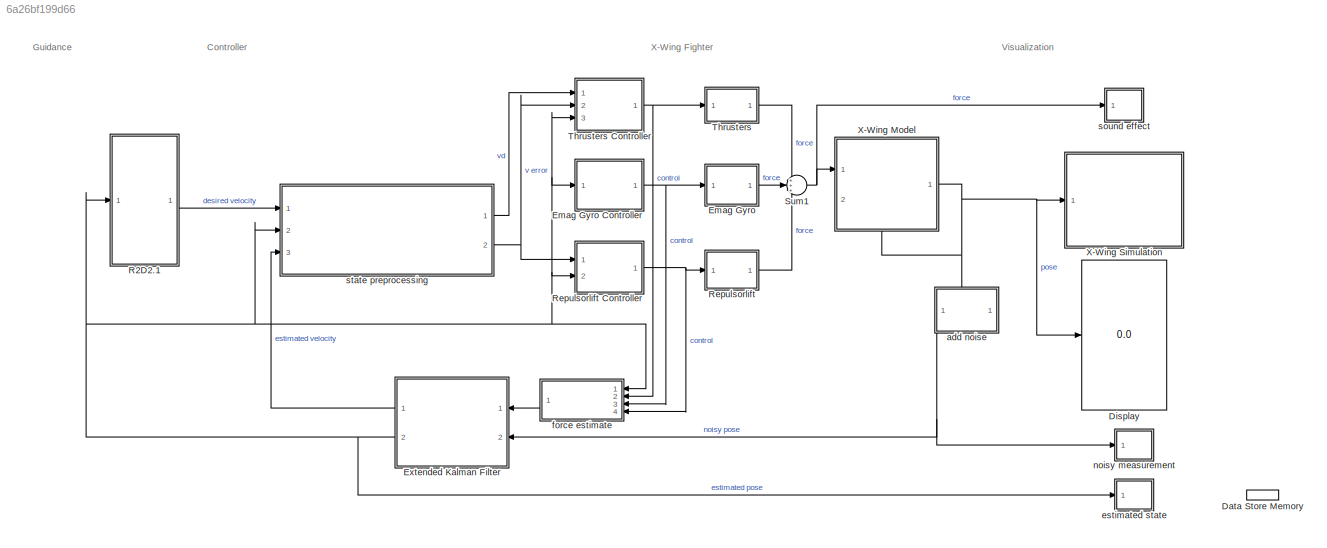
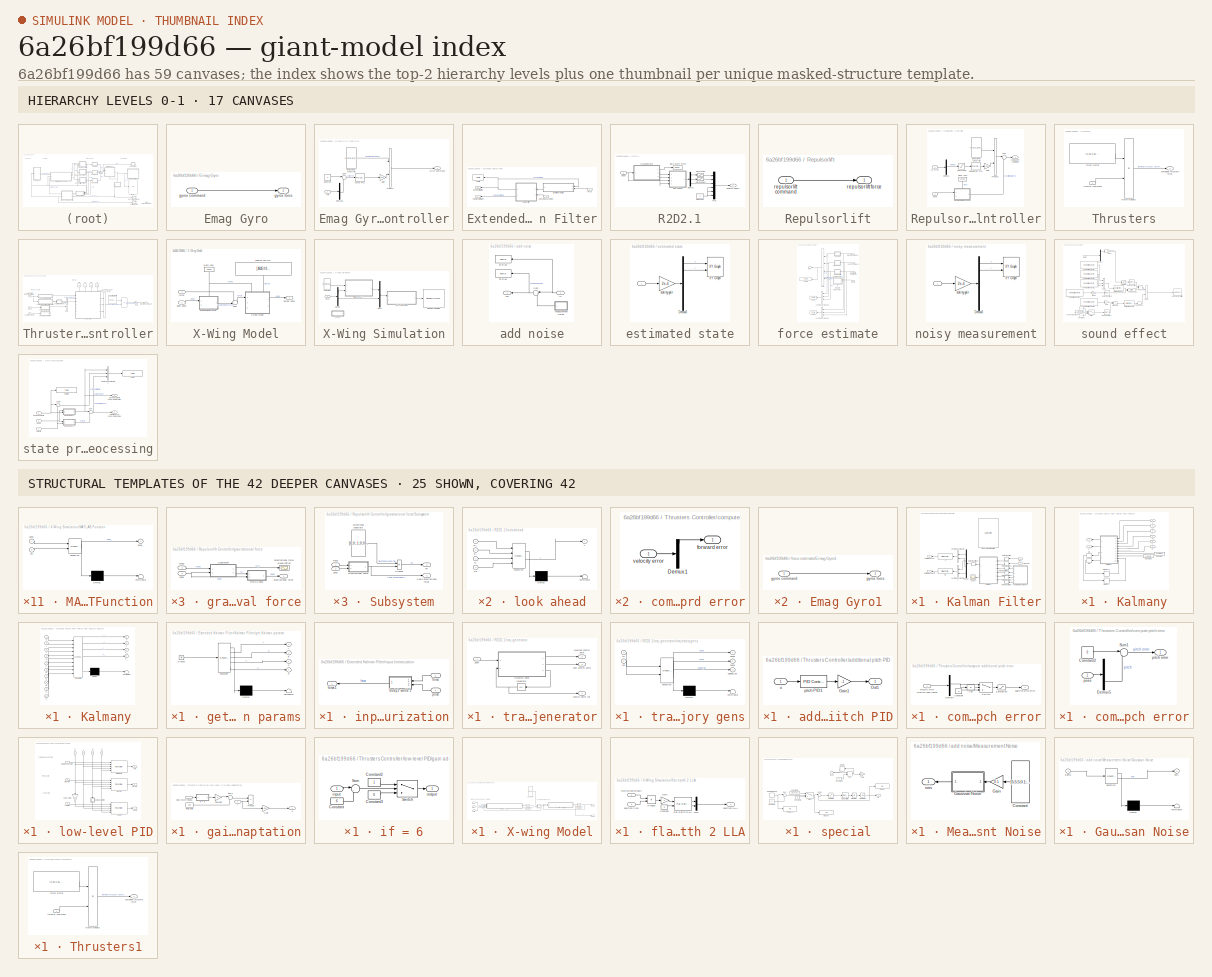
[diagram: thumbnail index - top-2 hierarchy levels (17 canvases) + 25 structural-template representatives of the remaining 42 canvases]
MODEL slx_6a26bf199d66
KIND model
CONFIG AbsTol = auto
CONFIG EnableMultiTasking = off
CONFIG FixedStep = auto
CONFIG MaxStep = auto
CONFIG MinStep = auto
CONFIG RelTol = 1e-3
CONFIG SampleTimeConstraint = Unconstrained
CONFIG SolverName = ode45
CONFIG StartTime = 0.0
CONFIG StopTime = 330
BLOCK [DataStoreMemory] Data Store Memory
  DataStoreName = cid
  ReadBeforeWriteMsg = warning
  ShowAdditionalParam = off
  WriteAfterReadMsg = warning
  WriteAfterWriteMsg = warning
BLOCK [Display] Display
  Decimation = 1
  Ports = [1]
BLOCK [SubSystem] Emag Gyro
  NameLocation = top
  Ports = [1, 1]
  RequestExecContextInheritance = off
BLOCK [SubSystem] Emag Gyro Controller
  NameLocation = top
  Ports = [1, 1]
  RequestExecContextInheritance = off
BLOCK [Constant] Emag Gyro Controller/Constant
  Value = 0
BLOCK [Demux] Emag Gyro Controller/Demux5
  Outputs = 6
  Ports = [1, 6]
BLOCK [Gain] Emag Gyro Controller/Gain
  Gain = 1e4
BLOCK [Reference] Emag Gyro Controller/Gyros PID  REF=pid_lib/PID Controller
  Ports = [1, 1]
  SourceBlock = pid_lib/PID Controller
  SourceProductBaseCode = SL
  SourceType = PID 1dof
BLOCK [Product] Emag Gyro Controller/Product
  Ports = [2, 1]
BLOCK [Sum] Emag Gyro Controller/Sum
  Inputs = |+-
  Ports = [2, 1]
BLOCK [Constant] Emag Gyro Controller/directional constrain
  Value = [0;0;0;1;0;0]
  VectorParams1D = off
BLOCK [Outport] Emag Gyro Controller/gyros command
  PortDimensions = 6
BLOCK [Inport] Emag Gyro Controller/roll
BLOCK [Inport] Emag Gyro/gyros command
BLOCK [Outport] Emag Gyro/gyros force
  PortDimensions = 6
BLOCK [SubSystem] Extended Kalman Filter
  Ports = [2, 2]
  RequestExecContextInheritance = off
BLOCK [SubSystem] Extended Kalman Filter/Kalman Filter
  Ports = [2, 2]
  RequestExecContextInheritance = off
BLOCK [Demux] Extended Kalman Filter/Kalman Filter/Demux
  Ports = [1, 4]
BLOCK [InitialCondition] Extended Kalman Filter/Kalman Filter/IC
  Value = [0;0;1.705/100;0;0;0]
BLOCK [InitialCondition] Extended Kalman Filter/Kalman Filter/IC1
  Value = [0;0;0;0;0;0]
BLOCK [SubSystem] Extended Kalman Filter/Kalman Filter/Kalmany
  Ports = [6, 2]
  RequestExecContextInheritance = off
BLOCK [Inport] Extended Kalman Filter/Kalman Filter/Kalmany/A
  Port = 3
BLOCK [Inport] Extended Kalman Filter/Kalman Filter/Kalmany/B
  Port = 4
BLOCK [Inport] Extended Kalman Filter/Kalman Filter/Kalmany/C
  Port = 5
BLOCK [Constant] Extended Kalman Filter/Kalman Filter/Kalmany/Constant
  Value = eye(6)*100
BLOCK [Constant] Extended Kalman Filter/Kalman Filter/Kalmany/Constant1
  Value = eye(12)*1
BLOCK [Inport] Extended Kalman Filter/Kalman Filter/Kalmany/D
  Port = 6
BLOCK [InitialCondition] Extended Kalman Filter/Kalman Filter/Kalmany/IC2
  Value = [0;0;1.705/100;0;0;0;0;0;0;0;0;0]
BLOCK [InitialCondition] Extended Kalman Filter/Kalman Filter/Kalmany/IC3
  Value = eye(12)*10
BLOCK [Outport] Extended Kalman Filter/Kalman Filter/Kalmany/K
  Port = 2
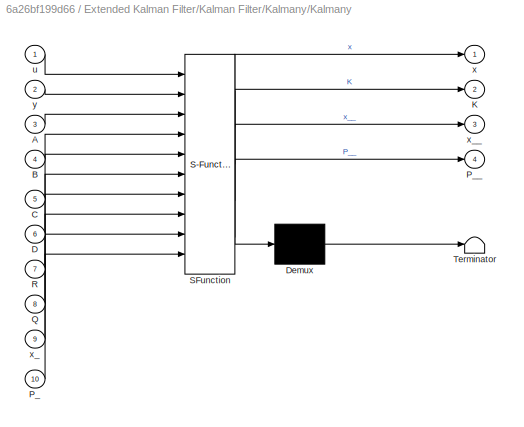
BLOCK [SubSystem] Extended Kalman Filter/Kalman Filter/Kalmany/Kalmany
  ErrorFcn = Stateflow.Translate.translate
  PermitHierarchicalResolution = ExplicitOnly
  Ports = [10, 4]
  RequestExecContextInheritance = off
  SFBlockType = MATLAB Function
  TreatAsAtomicUnit = on
BLOCK [Demux] Extended Kalman Filter/Kalman Filter/Kalmany/Kalmany/ Demux 
  Outputs = 1
  Ports = [1, 1]
BLOCK [S-Function] Extended Kalman Filter/Kalman Filter/Kalmany/Kalmany/ SFunction 
  EnableBusSupport = on
  FunctionName = sf_sfun
  PortCounts = [10 5]
  Ports = [10, 5]
  SFcnIsStateOwnerBlock = off
  SFunctionDeploymentMode = off
  Tag = Stateflow S-Function 13
BLOCK [Terminator] Extended Kalman Filter/Kalman Filter/Kalmany/Kalmany/ Terminator 
BLOCK [Inport] Extended Kalman Filter/Kalman Filter/Kalmany/Kalmany/A
  Port = 3
BLOCK [Inport] Extended Kalman Filter/Kalman Filter/Kalmany/Kalmany/B
  Port = 4
BLOCK [Inport] Extended Kalman Filter/Kalman Filter/Kalmany/Kalmany/C
  Port = 5
BLOCK [Inport] Extended Kalman Filter/Kalman Filter/Kalmany/Kalmany/D
  Port = 6
BLOCK [Outport] Extended Kalman Filter/Kalman Filter/Kalmany/Kalmany/K
  Port = 2
BLOCK [Inport] Extended Kalman Filter/Kalman Filter/Kalmany/Kalmany/P_
  Port = 10
BLOCK [Outport] Extended Kalman Filter/Kalman Filter/Kalmany/Kalmany/P__
  Port = 4
BLOCK [Inport] Extended Kalman Filter/Kalman Filter/Kalmany/Kalmany/Q
  Port = 8
BLOCK [Inport] Extended Kalman Filter/Kalman Filter/Kalmany/Kalmany/R
  Port = 7
BLOCK [Inport] Extended Kalman Filter/Kalman Filter/Kalmany/Kalmany/u
BLOCK [Outport] Extended Kalman Filter/Kalman Filter/Kalmany/Kalmany/x
BLOCK [Inport] Extended Kalman Filter/Kalman Filter/Kalmany/Kalmany/x_
  Port = 9
BLOCK [Outport] Extended Kalman Filter/Kalman Filter/Kalmany/Kalmany/x__
  Port = 3
BLOCK [Inport] Extended Kalman Filter/Kalman Filter/Kalmany/Kalmany/y
  Port = 2
BLOCK [Memory] Extended Kalman Filter/Kalman Filter/Kalmany/Memory
BLOCK [Memory] Extended Kalman Filter/Kalman Filter/Kalmany/Memory1
BLOCK [Inport] Extended Kalman Filter/Kalman Filter/Kalmany/u
BLOCK [Outport] Extended Kalman Filter/Kalman Filter/Kalmany/x
BLOCK [Inport] Extended Kalman Filter/Kalman Filter/Kalmany/y
  Port = 2
BLOCK [Reference] Extended Kalman Filter/Kalman Filter/MATLAB Kalman Filter  REF=ctrlSharedLib/Kalman Filter
  Commented = on
  Ports = [6, 1]
  SourceBlock = ctrlSharedLib/Kalman Filter
  SourceProductBaseCode = CT,ID
  SourceType = ctrlKalmanFilter
BLOCK [RateTransition] Extended Kalman Filter/Kalman Filter/Rate Transition
  OutPortSampleTime = 0.005
BLOCK [RateTransition] Extended Kalman Filter/Kalman Filter/Rate Transition1
  OutPortSampleTime = 0.005
BLOCK [RateTransition] Extended Kalman Filter/Kalman Filter/Rate Transition2
  OutPortSampleTime = 0
BLOCK [RateTransition] Extended Kalman Filter/Kalman Filter/Rate Transition3
  OutPortSampleTime = 0.005
BLOCK [RateTransition] Extended Kalman Filter/Kalman Filter/Rate Transition4
  OutPortSampleTime = 0.005
BLOCK [RateTransition] Extended Kalman Filter/Kalman Filter/Rate Transition5
  OutPortSampleTime = 0.005
BLOCK [RateTransition] Extended Kalman Filter/Kalman Filter/Rate Transition6
  OutPortSampleTime = 0.005
BLOCK [Scope] Extended Kalman Filter/Kalman Filter/Scope
  Floating = off
  NumInputPorts = 1
  Ports = [1]
  ScopeSpecificationString = Simulink.scopes.TimeScopeBlockCfg('CurrentConfiguration', extmgr.ConfigurationSet(extmgr.Configuration('Core','General UI',true),extmgr.Configuration('Core','Source UI',true),extmgr.Configuration('Sources','WiredSimulink',true,'DataLoggingVariableName','ScopeData1'),extmgr.Configuration('Visuals','Time Domain',true,'SerializedDisplays',{struct('MinYLimReal','-0.73993','MaxYLimReal','0.54407','YLab...<+2475ch>
BLOCK [Concatenate] Extended Kalman Filter/Kalman Filter/Vector Concatenate
  Ports = [2, 1]
BLOCK [Concatenate] Extended Kalman Filter/Kalman Filter/Vector Concatenate1
  Ports = [2, 1]
BLOCK [Outport] Extended Kalman Filter/Kalman Filter/estimated pose
  NameLocation = left
BLOCK [Outport] Extended Kalman Filter/Kalman Filter/estimated velocity
  NameLocation = left
  Port = 2
BLOCK [Inport] Extended Kalman Filter/Kalman Filter/force
  NameLocation = right
BLOCK [SubSystem] Extended Kalman Filter/Kalman Filter/get Kalman params
  ErrorFcn = Stateflow.Translate.translate
  PermitHierarchicalResolution = ExplicitOnly
  Ports = [0, 4]
  RequestExecContextInheritance = off
  SFBlockType = MATLAB Function
  TreatAsAtomicUnit = on
BLOCK [Demux] Extended Kalman Filter/Kalman Filter/get Kalman params/ Demux 
  Outputs = 1
  Ports = [1, 1]
BLOCK [Ground] Extended Kalman Filter/Kalman Filter/get Kalman params/ Ground 
BLOCK [S-Function] Extended Kalman Filter/Kalman Filter/get Kalman params/ SFunction 
  EnableBusSupport = on
  FunctionName = sf_sfun
  PortCounts = [1 5]
  Ports = [1, 5]
  SFcnIsStateOwnerBlock = off
  SFunctionDeploymentMode = off
  Tag = Stateflow S-Function 11
BLOCK [Terminator] Extended Kalman Filter/Kalman Filter/get Kalman params/ Terminator 
BLOCK [Outport] Extended Kalman Filter/Kalman Filter/get Kalman params/A
BLOCK [Outport] Extended Kalman Filter/Kalman Filter/get Kalman params/B
  Port = 2
BLOCK [Outport] Extended Kalman Filter/Kalman Filter/get Kalman params/C
  Port = 3
BLOCK [Outport] Extended Kalman Filter/Kalman Filter/get Kalman params/D
  Port = 4
BLOCK [Inport] Extended Kalman Filter/Kalman Filter/measure
  NameLocation = right
  Port = 2
BLOCK [ToFile] Extended Kalman Filter/To File
  Filename = pose.mat
  MatrixName = data
  Ports = [1]
  SaveFormat = Timeseries
BLOCK [Inport] Extended Kalman Filter/force
BLOCK [SubSystem] Extended Kalman Filter/input linearization
  NameLocation = top
  Ports = [2, 1]
  RequestExecContextInheritance = off
BLOCK [SubSystem] Extended Kalman Filter/input linearization/body 2 world 1
  ErrorFcn = Stateflow.Translate.translate
  PermitHierarchicalResolution = ExplicitOnly
  Ports = [2, 1]
  RequestExecContextInheritance = off
  SFBlockType = MATLAB Function
  TreatAsAtomicUnit = on
BLOCK [Demux] Extended Kalman Filter/input linearization/body 2 world 1/ Demux 
  Outputs = 1
  Ports = [1, 1]
BLOCK [S-Function] Extended Kalman Filter/input linearization/body 2 world 1/ SFunction 
  EnableBusSupport = on
  FunctionName = sf_sfun
  PortCounts = [2 2]
  Ports = [2, 2]
  SFcnIsStateOwnerBlock = off
  SFunctionDeploymentMode = off
  Tag = Stateflow S-Function 12
BLOCK [Terminator] Extended Kalman Filter/input linearization/body 2 world 1/ Terminator 
BLOCK [Outport] Extended Kalman Filter/input linearization/body 2 world 1/pb
BLOCK [Inport] Extended Kalman Filter/input linearization/body 2 world 1/pose
  Port = 2
BLOCK [Inport] Extended Kalman Filter/input linearization/body 2 world 1/signal
BLOCK [Inport] Extended Kalman Filter/input linearization/force
  Port = 2
BLOCK [Outport] Extended Kalman Filter/input linearization/force1
BLOCK [Inport] Extended Kalman Filter/input linearization/pose
BLOCK [Inport] Extended Kalman Filter/noisy measurement
  Port = 2
BLOCK [Outport] Extended Kalman Filter/pose estimated
  Port = 2
BLOCK [Outport] Extended Kalman Filter/velocity estimated
BLOCK [SubSystem] R2D2.1
  Ports = [1, 1]
  RequestExecContextInheritance = off
BLOCK [Constant] R2D2.1/Constant
  Value = 0
BLOCK [DataStoreWrite] R2D2.1/Data Store Write
  DataStoreName = cid
  IndexOptions = Index vector (dialog)
  Indices = 1
  OutputSizes = 1
  Ports = [1]
BLOCK [Demux] R2D2.1/Demux
  Outputs = 3
  Ports = [1, 3]
BLOCK [Mux] R2D2.1/Mux
  DisplayOption = bar
  Inputs = 6
  Ports = [6, 1]
BLOCK [Saturate] R2D2.1/Saturation
  LowerLimit = -100
  UpperLimit = 100
BLOCK [Saturate] R2D2.1/Saturation1
  LowerLimit = -100
  UpperLimit = 100
BLOCK [Outport] R2D2.1/desired velocity
BLOCK [SubSystem] R2D2.1/look ahead
  ErrorFcn = Stateflow.Translate.translate
  PermitHierarchicalResolution = ExplicitOnly
  Ports = [4, 1]
  RequestExecContextInheritance = off
  SFBlockType = MATLAB Function
  TreatAsAtomicUnit = on
BLOCK [Demux] R2D2.1/look ahead/ Demux 
  Outputs = 1
  Ports = [1, 1]
BLOCK [S-Function] R2D2.1/look ahead/ SFunction 
  EnableBusSupport = on
  FunctionName = sf_sfun
  PortCounts = [4 2]
  Ports = [4, 2]
  SFcnIsStateOwnerBlock = off
  SFunctionDeploymentMode = off
  Tag = Stateflow S-Function 3
BLOCK [Terminator] R2D2.1/look ahead/ Terminator 
BLOCK [Inport] R2D2.1/look ahead/cid
  Port = 4
BLOCK [Inport] R2D2.1/look ahead/p_
  Port = 3
BLOCK [Inport] R2D2.1/look ahead/pi_
BLOCK [Inport] R2D2.1/look ahead/pj_
  Port = 2
BLOCK [Outport] R2D2.1/look ahead/v
BLOCK [Inport] R2D2.1/pose
BLOCK [SubSystem] R2D2.1/traj generator
  NameLocation = top
  Ports = [1, 3]
  RequestExecContextInheritance = off
BLOCK [Integrator] R2D2.1/traj generator/Integrator
  InitialCondition = 2
  Ports = [1, 1]
BLOCK [Outport] R2D2.1/traj generator/control point idx
  PortDimensions = 1
BLOCK [Outport] R2D2.1/traj generator/next control point
  Port = 3
  PortDimensions = 3
BLOCK [Inport] R2D2.1/traj generator/pose
BLOCK [Outport] R2D2.1/traj generator/previous control point
  Port = 2
  PortDimensions = 3
BLOCK [SubSystem] R2D2.1/traj generator/trajectory gens
  ErrorFcn = Stateflow.Translate.translate
  PermitHierarchicalResolution = ExplicitOnly
  Ports = [2, 3]
  RequestExecContextInheritance = off
  SFBlockType = MATLAB Function
  TreatAsAtomicUnit = on
BLOCK [Demux] R2D2.1/traj generator/trajectory gens/ Demux 
  Outputs = 1
  Ports = [1, 1]
BLOCK [S-Function] R2D2.1/traj generator/trajectory gens/ SFunction 
  EnableBusSupport = on
  FunctionName = sf_sfun
  PortCounts = [2 4]
  Ports = [2, 4]
  SFcnIsStateOwnerBlock = off
  SFunctionDeploymentMode = off
  Tag = Stateflow S-Function 10
BLOCK [Terminator] R2D2.1/traj generator/trajectory gens/ Terminator 
BLOCK [Outport] R2D2.1/traj generator/trajectory gens/added_idx
  Port = 3
BLOCK [Inport] R2D2.1/traj generator/trajectory gens/fb
BLOCK [Inport] R2D2.1/traj generator/trajectory gens/idx
  Port = 2
BLOCK [Outport] R2D2.1/traj generator/trajectory gens/posei
BLOCK [Outport] R2D2.1/traj generator/trajectory gens/posej
  Port = 2
BLOCK [SubSystem] Repulsorlift
  NameLocation = top
  Ports = [1, 1]
  RequestExecContextInheritance = off
BLOCK [SubSystem] Repulsorlift Controller
  NameLocation = top
  Ports = [2, 1]
  RequestExecContextInheritance = off
BLOCK [Demux] Repulsorlift Controller/Demux1
  Outputs = 6
  Ports = [1, 6]
BLOCK [Gain] Repulsorlift Controller/Gain
  Gain = 1e4
BLOCK [Product] Repulsorlift Controller/Product
  Ports = [2, 1]
BLOCK [Reference] Repulsorlift Controller/Repulsorlift PID  REF=pid_lib/PID Controller
  Ports = [1, 1]
  SourceBlock = pid_lib/PID Controller
  SourceProductBaseCode = SL
  SourceType = PID 1dof
BLOCK [Saturate] Repulsorlift Controller/Saturation
  LowerLimit = -10
  UpperLimit = 10
BLOCK [Sum] Repulsorlift Controller/Sum
  Inputs = |+-
  Ports = [2, 1]
BLOCK [Constant] Repulsorlift Controller/directional constrain
  Value = [0;0;1;0;0;0]
  VectorParams1D = off
BLOCK [SubSystem] Repulsorlift Controller/gravitational force
  PortSchema = {"entries":[{"content":{"sides":[{"content":{"connectorIds":["In1"]},"type":"ConnectorPlacement.EquallySpacedRectSide","uuid":"d93db66b-fcc6-4c17-9134-40d9beba2643"},{"content":{"connectorIds":["Out1"],"side":"RIGHT"},"type":"ConnectorPlacement.EquallySpacedRectSide","uuid":"70571ecc-e0da-42b3-8b7b-d4ce677f32d8"},{"content":{"connectorIds":["In2"],"side":"TOP"},"type":"ConnectorPlacement.EquallySp...<+389ch>
  Ports = [2, 1]
  RequestExecContextInheritance = off
BLOCK [SubSystem] Repulsorlift Controller/gravitational force/Subsystem
  NameLocation = top
  Ports = [2, 2]
  RequestExecContextInheritance = off
BLOCK [Outport] Repulsorlift Controller/gravitational force/Subsystem/Fg
  Port = 2
BLOCK [SubSystem] Repulsorlift Controller/gravitational force/Subsystem/Gravitational Force
  ErrorFcn = Stateflow.Translate.translate
  PermitHierarchicalResolution = ExplicitOnly
  Ports = [2, 1]
  RequestExecContextInheritance = off
  SFBlockType = MATLAB Function
  TreatAsAtomicUnit = on
BLOCK [Demux] Repulsorlift Controller/gravitational force/Subsystem/Gravitational Force/ Demux 
  Outputs = 1
  Ports = [1, 1]
BLOCK [S-Function] Repulsorlift Controller/gravitational force/Subsystem/Gravitational Force/ SFunction 
  EnableBusSupport = on
  FunctionName = sf_sfun
  PortCounts = [2 2]
  Ports = [2, 2]
  SFcnIsStateOwnerBlock = off
  SFunctionDeploymentMode = off
  Tag = Stateflow S-Function 14
BLOCK [Terminator] Repulsorlift Controller/gravitational force/Subsystem/Gravitational Force/ Terminator 
BLOCK [Outport] Repulsorlift Controller/gravitational force/Subsystem/Gravitational Force/fg
BLOCK [Inport] Repulsorlift Controller/gravitational force/Subsystem/Gravitational Force/m
BLOCK [Inport] Repulsorlift Controller/gravitational force/Subsystem/Gravitational Force/pose
  Port = 2
BLOCK [Product] Repulsorlift Controller/gravitational force/Subsystem/Product
  Ports = [2, 1]
BLOCK [Constant] Repulsorlift Controller/gravitational force/Subsystem/directional constrain
  Value = [0;0;-1;0;0;0]
  VectorParams1D = off
BLOCK [Inport] Repulsorlift Controller/gravitational force/Subsystem/mass
  NameLocation = top
BLOCK [Inport] Repulsorlift Controller/gravitational force/Subsystem/pose
  Port = 2
BLOCK [Outport] Repulsorlift Controller/gravitational force/Subsystem/z-axis gravitational force
BLOCK [Outport] Repulsorlift Controller/gravitational force/gravitational force
  PortDimensions = 6
BLOCK [Scope] Repulsorlift Controller/gravitational force/gravitational force visualization
  Commented = on
  Floating = off
  NameLocation = top
  NumInputPorts = 1
  Ports = [1]
  ScopeSpecificationString = Simulink.scopes.TimeScopeBlockCfg('CurrentConfiguration', extmgr.ConfigurationSet(extmgr.Configuration('Core','General UI',true),extmgr.Configuration('Core','Source UI',true),extmgr.Configuration('Sources','WiredSimulink',true,'DataLoggingVariableName','ScopeData1'),extmgr.Configuration('Visuals','Time Domain',true,'SerializedDisplays',{struct('MinYLimReal','94625.61951','MaxYLimReal','98414.04236...<+1417ch>  <repeated x3 — deduplicated; at blocks: gravitational force visualization>
BLOCK [Inport] Repulsorlift Controller/gravitational force/mass
  NameLocation = top
  Port = 2
BLOCK [Inport] Repulsorlift Controller/gravitational force/pose
BLOCK [SubSystem] Repulsorlift Controller/gravitational force/world 2 body 
  ErrorFcn = Stateflow.Translate.translate
  PermitHierarchicalResolution = ExplicitOnly
  Ports = [2, 1]
  RequestExecContextInheritance = off
  SFBlockType = MATLAB Function
  TreatAsAtomicUnit = on
BLOCK [Demux] Repulsorlift Controller/gravitational force/world 2 body / Demux 
  Outputs = 1
  Ports = [1, 1]
BLOCK [S-Function] Repulsorlift Controller/gravitational force/world 2 body / SFunction 
  EnableBusSupport = on
  FunctionName = sf_sfun
  PortCounts = [2 2]
  Ports = [2, 2]
  SFcnIsStateOwnerBlock = off
  SFunctionDeploymentMode = off
  Tag = Stateflow S-Function 15
BLOCK [Terminator] Repulsorlift Controller/gravitational force/world 2 body / Terminator 
BLOCK [Outport] Repulsorlift Controller/gravitational force/world 2 body /pb
BLOCK [Inport] Repulsorlift Controller/gravitational force/world 2 body /pose
  Port = 2
BLOCK [Inport] Repulsorlift Controller/gravitational force/world 2 body /signal
BLOCK [Constant] Repulsorlift Controller/mass <kg>
  NameLocation = top
  Value = 10000
BLOCK [Inport] Repulsorlift Controller/pose
  Port = 2
BLOCK [Outport] Repulsorlift Controller/repulsorlift command
  PortDimensions = 6
BLOCK [Inport] Repulsorlift Controller/vz error
BLOCK [Inport] Repulsorlift/repulsorlift command
BLOCK [Outport] Repulsorlift/repulsorlift force
  PortDimensions = 6
BLOCK [Sum] Sum1
  Inputs = +++
  Ports = [3, 1]
BLOCK [SubSystem] Thrusters
  NameLocation = top
  Ports = [1, 1]
  RequestExecContextInheritance = off
BLOCK [SubSystem] Thrusters Controller
  NameLocation = top
  Ports = [3, 1]
  RequestExecContextInheritance = off
BLOCK [Product] Thrusters Controller/  
  Multiplication = Matrix(*)
  Ports = [2, 1]
BLOCK [Gain] Thrusters Controller/Gain
  Gain = 1e4
BLOCK [Constant] Thrusters Controller/Kd
  NameLocation = left
  Value = 3.0
BLOCK [Constant] Thrusters Controller/Ki
  NameLocation = left
  Value = 0
BLOCK [Constant] Thrusters Controller/Kp
  NameLocation = left
  Value = 1.0
BLOCK [Constant] Thrusters Controller/N
  NameLocation = left
  Value = 100
BLOCK [Sum] Thrusters Controller/Sum
  IconShape = rectangular
  Ports = [2, 1]
BLOCK [Concatenate] Thrusters Controller/Vector Concatenate
  NumInputs = 3
  Ports = [3, 1]
BLOCK [SubSystem] Thrusters Controller/additional pitch PID
  Ports = [1, 1]
  RequestExecContextInheritance = off
BLOCK [Gain] Thrusters Controller/additional pitch PID/Gain1
  Gain = -1
BLOCK [Outport] Thrusters Controller/additional pitch PID/Out1
  PortDimensions = 1
BLOCK [Reference] Thrusters Controller/additional pitch PID/pitch PID1  REF=pid_lib/PID Controller
  Ports = [1, 1]
  SourceBlock = pid_lib/PID Controller
  SourceProductBaseCode = SL
  SourceType = PID 1dof
BLOCK [Inport] Thrusters Controller/additional pitch PID/u
BLOCK [SubSystem] Thrusters Controller/compute additional pitch error
  Ports = [1, 1]
  RequestExecContextInheritance = off
  ShowPortLabels = SignalName
BLOCK [Abs] Thrusters Controller/compute additional pitch error/Abs
  SaturateOnIntegerOverflow = off
BLOCK [Constant] Thrusters Controller/compute additional pitch error/Constant
  Value = 0
BLOCK [Demux] Thrusters Controller/compute additional pitch error/Demux4
  Outputs = 6
  Ports = [1, 6]
BLOCK [Saturate] Thrusters Controller/compute additional pitch error/Saturation
  LowerLimit = -10
  UpperLimit = 10
BLOCK [Switch] Thrusters Controller/compute additional pitch error/Switch
  Criteria = u2 > Threshold
  InputSameDT = off
  SaturateOnIntegerOverflow = off
  Threshold = 1
BLOCK [Outport] Thrusters Controller/compute additional pitch error/addition pitch error
  PortDimensions = 1
BLOCK [Inport] Thrusters Controller/compute additional pitch error/velocity error (world-fixed frame)
BLOCK [SubSystem] Thrusters Controller/compute forward error
  Ports = [1, 1]
  RequestExecContextInheritance = off
BLOCK [Demux] Thrusters Controller/compute forward error/Demux1
  Outputs = 6
  Ports = [1, 6]
BLOCK [Outport] Thrusters Controller/compute forward error/forward error
BLOCK [Inport] Thrusters Controller/compute forward error/velocity error
BLOCK [SubSystem] Thrusters Controller/compute pitch error
  Ports = [1, 1]
  RequestExecContextInheritance = off
BLOCK [Constant] Thrusters Controller/compute pitch error/Constant2
  Value = 0
BLOCK [Demux] Thrusters Controller/compute pitch error/Demux5
  Outputs = 6
  Ports = [1, 6]
BLOCK [Sum] Thrusters Controller/compute pitch error/Sum1
  Inputs = |+-
  Ports = [2, 1]
BLOCK [Outport] Thrusters Controller/compute pitch error/pitch error
BLOCK [Inport] Thrusters Controller/compute pitch error/pose
BLOCK [SubSystem] Thrusters Controller/compute yaw error
  Ports = [1, 1]
  RequestExecContextInheritance = off
BLOCK [Demux] Thrusters Controller/compute yaw error/Demux2
  Outputs = 6
  Ports = [1, 6]
BLOCK [Inport] Thrusters Controller/compute yaw error/pose
BLOCK [Outport] Thrusters Controller/compute yaw error/vy
BLOCK [Inport] Thrusters Controller/desired velocity
  NameLocation = top
BLOCK [SubSystem] Thrusters Controller/low-level PID
  PortSchema = {"entries":[{"content":{"sides":[{"content":{"connectorIds":["In1","In2","In3"]},"type":"ConnectorPlacement.EquallySpacedRectSide","uuid":"f6ea6f6d-4efd-425d-8a85-ce3b9bde565c"},{"content":{"connectorIds":["Out1","Out2","Out3"],"side":"RIGHT"},"type":"ConnectorPlacement.EquallySpacedRectSide","uuid":"bea2efba-fcca-41fe-8e46-9fa204d644b4"},{"content":{"connectorIds":["In4","In5","In6","In7"],"side"...<+289ch>
  Ports = [7, 3]
  RequestExecContextInheritance = off
BLOCK [Inport] Thrusters Controller/low-level PID/D
  NameLocation = left
  Port = 6
BLOCK [Inport] Thrusters Controller/low-level PID/I
  NameLocation = left
  Port = 5
BLOCK [Inport] Thrusters Controller/low-level PID/N
  NameLocation = left
  Port = 7
BLOCK [Inport] Thrusters Controller/low-level PID/P
  NameLocation = left
  Port = 4
BLOCK [Reference] Thrusters Controller/low-level PID/forward PID  REF=pid_lib/PID Controller
  Ports = [5, 1]
  SourceBlock = pid_lib/PID Controller
  SourceProductBaseCode = SL
  SourceType = PID 1dof
BLOCK [Inport] Thrusters Controller/low-level PID/forward speed error
BLOCK [SubSystem] Thrusters Controller/low-level PID/gain adaptation
  NameLocation = left
  Ports = [1, 1]
  RequestExecContextInheritance = off
BLOCK [DataStoreRead] Thrusters Controller/low-level PID/gain adaptation/Data Store Read1
  DataStoreName = cid
  IndexOptions = Index vector (dialog)
  Indices = 1
  OutputSizes = 1
  Ports = [0, 1]
BLOCK [Gain] Thrusters Controller/low-level PID/gain adaptation/Gain
  Gain = 0.01
BLOCK [Product] Thrusters Controller/low-level PID/gain adaptation/Product
  Ports = [2, 1]
BLOCK [Sum] Thrusters Controller/low-level PID/gain adaptation/Sum1
  Inputs = |++
  Ports = [2, 1]
BLOCK [Gain] Thrusters Controller/low-level PID/gain adaptation/final gain
BLOCK [Inport] Thrusters Controller/low-level PID/gain adaptation/i
BLOCK [SubSystem] Thrusters Controller/low-level PID/gain adaptation/if = 6
  Ports = [1, 1]
  RequestExecContextInheritance = off
BLOCK [Constant] Thrusters Controller/low-level PID/gain adaptation/if = 6/Constant
  Value = 6
BLOCK [Constant] Thrusters Controller/low-level PID/gain adaptation/if = 6/Constant2
BLOCK [Constant] Thrusters Controller/low-level PID/gain adaptation/if = 6/Constant3
  Value = 0
BLOCK [Sum] Thrusters Controller/low-level PID/gain adaptation/if = 6/Sum
  Inputs = |+-
  Ports = [2, 1]
BLOCK [Switch] Thrusters Controller/low-level PID/gain adaptation/if = 6/Switch
  Criteria = u2 > Threshold
  InputSameDT = off
  SaturateOnIntegerOverflow = off
  Threshold = 0.1
BLOCK [Inport] Thrusters Controller/low-level PID/gain adaptation/if = 6/input
BLOCK [Outport] Thrusters Controller/low-level PID/gain adaptation/if = 6/output
BLOCK [Constant] Thrusters Controller/low-level PID/gain adaptation/initial gain
  Value = 0.00
BLOCK [Outport] Thrusters Controller/low-level PID/gain adaptation/o
BLOCK [Gain] Thrusters Controller/low-level PID/gain scaling
  Gain = 0.01
  NameLocation = left
BLOCK [Reference] Thrusters Controller/low-level PID/pitch PID  REF=pid_lib/PID Controller
  Ports = [5, 1]
  SourceBlock = pid_lib/PID Controller
  SourceProductBaseCode = SL
  SourceType = PID 1dof
BLOCK [Inport] Thrusters Controller/low-level PID/pitch error
  Port = 2
BLOCK [Outport] Thrusters Controller/low-level PID/pitch pid
  Port = 2
  Unit = 1
BLOCK [Outport] Thrusters Controller/low-level PID/x pid
  Unit = 1
BLOCK [Reference] Thrusters Controller/low-level PID/yaw PID  REF=pid_lib/PID Controller
  Ports = [5, 1]
  SourceBlock = pid_lib/PID Controller
  SourceProductBaseCode = SL
  SourceType = PID 1dof
BLOCK [Inport] Thrusters Controller/low-level PID/yaw error
  Port = 3
BLOCK [Outport] Thrusters Controller/low-level PID/yaw pid
  Port = 3
  Unit = 1
BLOCK [Inport] Thrusters Controller/pose
  NameLocation = top
  Port = 3
BLOCK [Constant] Thrusters Controller/selection matrix
  NameLocation = top
  Value = [1 -1 1; 1 -1 -1; 1 1 1; 1 1 -1]
  VectorParams1D = off
BLOCK [Outport] Thrusters Controller/thrusters command
  PortDimensions = 4
BLOCK [Inport] Thrusters Controller/velocity error (body-fixed frame)
  NameLocation = top
  Port = 2
BLOCK [Product] Thrusters/Matrix Multiply2
  Multiplication = Matrix(*)
  Ports = [2, 1]
BLOCK [Outport] Thrusters/combined thrusters force
  PortDimensions = 6
BLOCK [Inport] Thrusters/threster command
  PortDimensions = 4
BLOCK [Constant] Thrusters/thrust matrix
  NameLocation = top
  Value = [0.25 0.25 0.25 0.25; 0 0 0 0; 0 0 0 0; 0 0 0 0; -0.68 -0.68 0.68 0.68; 1.425 -1.425 1.425 -1.425]
  VectorParams1D = off
BLOCK [SubSystem] X-Wing Model
  NameLocation = top
  PortSchema = {"entries":[{"content":{"sides":[{"content":{"connectorIds":["In1"]},"type":"ConnectorPlacement.EquallySpacedRectSide","uuid":"9b8fdf7d-c3f6-4599-b802-210579db8a0c"},{"content":{"connectorIds":["Out1"],"side":"RIGHT"},"type":"ConnectorPlacement.EquallySpacedRectSide","uuid":"64fce1f1-7921-46e2-bebf-614926f0f3ad"},{"content":{"connectorIds":[],"side":"TOP"},"type":"ConnectorPlacement.EquallySpacedR...<+389ch>
  Ports = [2, 1]
  RequestExecContextInheritance = off
BLOCK [Sum] X-Wing Model/Sum
  Inputs = ++|
  Ports = [2, 1]
BLOCK [SubSystem] X-Wing Model/X-wing Model
  PortSchema = {"entries":[{"content":{"sides":[{"content":{"connectorIds":["In1"]},"type":"ConnectorPlacement.EquallySpacedRectSide","uuid":"7004d7e2-eb30-41ed-9d5e-f00159415fc4"},{"content":{"connectorIds":["Out1","Out2"],"side":"RIGHT"},"type":"ConnectorPlacement.EquallySpacedRectSide","uuid":"4cf7ba01-0c86-439c-9faf-473746ab50fc"},{"content":{"connectorIds":["In2","In3"],"side":"TOP"},"type":"ConnectorPlacem...<+402ch>
  Ports = [3, 2]
  RequestExecContextInheritance = off
BLOCK [Constant] X-Wing Model/X-wing Model/Constant
  Value = [1;0;1;1;1;1]
  VectorParams1D = off
BLOCK [Product] X-Wing Model/X-wing Model/Product
  Ports = [2, 1]
BLOCK [Integrator] X-Wing Model/X-wing Model/angular velocity integrater
  InitialCondition = [0;0;0;0;0;0]
  NameLocation = top
  Ports = [1, 1]
BLOCK [Inport] X-Wing Model/X-wing Model/force
BLOCK [SubSystem] X-Wing Model/X-wing Model/forward dynamic
  ErrorFcn = Stateflow.Translate.translate
  PermitHierarchicalResolution = ExplicitOnly
  Ports = [4, 1]
  RequestExecContextInheritance = off
  SFBlockType = MATLAB Function
  TreatAsAtomicUnit = on
BLOCK [Demux] X-Wing Model/X-wing Model/forward dynamic/ Demux 
  Outputs = 1
  Ports = [1, 1]
BLOCK [S-Function] X-Wing Model/X-wing Model/forward dynamic/ SFunction 
  EnableBusSupport = on
  FunctionName = sf_sfun
  PortCounts = [4 2]
  Ports = [4, 2]
  SFcnIsStateOwnerBlock = off
  SFunctionDeploymentMode = off
  Tag = Stateflow S-Function 2
BLOCK [Terminator] X-Wing Model/X-wing Model/forward dynamic/ Terminator 
BLOCK [Inport] X-Wing Model/X-wing Model/forward dynamic/I
  Port = 4
BLOCK [Outport] X-Wing Model/X-wing Model/forward dynamic/ddnu
BLOCK [Inport] X-Wing Model/X-wing Model/forward dynamic/m
  Port = 3
BLOCK [Inport] X-Wing Model/X-wing Model/forward dynamic/nu
BLOCK [Inport] X-Wing Model/X-wing Model/forward dynamic/tau
  Port = 2
BLOCK [Inport] X-Wing Model/X-wing Model/inertia
  Port = 3
BLOCK [Integrator] X-Wing Model/X-wing Model/linear pose integrater
  InitialCondition = [0;0;1.705/100;0.0;0.0;0.0]
  NameLocation = top
  Ports = [1, 1]
BLOCK [Inport] X-Wing Model/X-wing Model/mass
  Port = 2
BLOCK [Outport] X-Wing Model/X-wing Model/pose
  PortDimensions = 6
BLOCK [Outport] X-Wing Model/X-wing Model/velocity
  Port = 2
  PortDimensions = 6
BLOCK [SubSystem] X-Wing Model/X-wing Model/velocity transformation
  ErrorFcn = Stateflow.Translate.translate
  PermitHierarchicalResolution = ExplicitOnly
  Ports = [2, 1]
  RequestExecContextInheritance = off
  SFBlockType = MATLAB Function
  TreatAsAtomicUnit = on
BLOCK [Demux] X-Wing Model/X-wing Model/velocity transformation/ Demux 
  Outputs = 1
  Ports = [1, 1]
BLOCK [S-Function] X-Wing Model/X-wing Model/velocity transformation/ SFunction 
  EnableBusSupport = on
  FunctionName = sf_sfun
  PortCounts = [2 2]
  Ports = [2, 2]
  SFcnIsStateOwnerBlock = off
  SFunctionDeploymentMode = off
  Tag = Stateflow S-Function 5
BLOCK [Terminator] X-Wing Model/X-wing Model/velocity transformation/ Terminator 
BLOCK [Inport] X-Wing Model/X-wing Model/velocity transformation/dnu
  Port = 2
BLOCK [Inport] X-Wing Model/X-wing Model/velocity transformation/nu
BLOCK [Outport] X-Wing Model/X-wing Model/velocity transformation/v
BLOCK [Inport] X-Wing Model/force
BLOCK [SubSystem] X-Wing Model/gravitational force
  PortSchema = {"entries":[{"content":{"sides":[{"content":{"connectorIds":["In1"]},"type":"ConnectorPlacement.EquallySpacedRectSide","uuid":"d93db66b-fcc6-4c17-9134-40d9beba2643"},{"content":{"connectorIds":["Out1"],"side":"RIGHT"},"type":"ConnectorPlacement.EquallySpacedRectSide","uuid":"70571ecc-e0da-42b3-8b7b-d4ce677f32d8"},{"content":{"connectorIds":["In2"],"side":"TOP"},"type":"ConnectorPlacement.EquallySp...<+389ch>
  Ports = [2, 1]
  RequestExecContextInheritance = off
BLOCK [SubSystem] X-Wing Model/gravitational force/Subsystem
  NameLocation = top
  Ports = [2, 2]
  RequestExecContextInheritance = off
BLOCK [Outport] X-Wing Model/gravitational force/Subsystem/Fg
  Port = 2
BLOCK [SubSystem] X-Wing Model/gravitational force/Subsystem/Gravitational Force
  ErrorFcn = Stateflow.Translate.translate
  PermitHierarchicalResolution = ExplicitOnly
  Ports = [2, 1]
  RequestExecContextInheritance = off
  SFBlockType = MATLAB Function
  TreatAsAtomicUnit = on
BLOCK [Demux] X-Wing Model/gravitational force/Subsystem/Gravitational Force/ Demux 
  Outputs = 1
  Ports = [1, 1]
BLOCK [S-Function] X-Wing Model/gravitational force/Subsystem/Gravitational Force/ SFunction 
  EnableBusSupport = on
  FunctionName = sf_sfun
  PortCounts = [2 2]
  Ports = [2, 2]
  SFcnIsStateOwnerBlock = off
  SFunctionDeploymentMode = off
  Tag = Stateflow S-Function 1
BLOCK [Terminator] X-Wing Model/gravitational force/Subsystem/Gravitational Force/ Terminator 
BLOCK [Outport] X-Wing Model/gravitational force/Subsystem/Gravitational Force/fg
BLOCK [Inport] X-Wing Model/gravitational force/Subsystem/Gravitational Force/m
BLOCK [Inport] X-Wing Model/gravitational force/Subsystem/Gravitational Force/pose
  Port = 2
BLOCK [Product] X-Wing Model/gravitational force/Subsystem/Product
  Ports = [2, 1]
BLOCK [Constant] X-Wing Model/gravitational force/Subsystem/directional constrain
  Value = [0;0;-1;0;0;0]
  VectorParams1D = off
BLOCK [Inport] X-Wing Model/gravitational force/Subsystem/mass
  NameLocation = top
BLOCK [Inport] X-Wing Model/gravitational force/Subsystem/pose
  Port = 2
BLOCK [Outport] X-Wing Model/gravitational force/Subsystem/z-axis gravitational force
BLOCK [Outport] X-Wing Model/gravitational force/gravitational force
  PortDimensions = 6
BLOCK [Scope] X-Wing Model/gravitational force/gravitational force visualization
  Commented = on
  Floating = off
  NameLocation = top
  NumInputPorts = 1
  Ports = [1]
BLOCK [Inport] X-Wing Model/gravitational force/mass
  NameLocation = top
  Port = 2
BLOCK [Inport] X-Wing Model/gravitational force/pose
BLOCK [SubSystem] X-Wing Model/gravitational force/world 2 body 
  ErrorFcn = Stateflow.Translate.translate
  PermitHierarchicalResolution = ExplicitOnly
  Ports = [2, 1]
  RequestExecContextInheritance = off
  SFBlockType = MATLAB Function
  TreatAsAtomicUnit = on
BLOCK [Demux] X-Wing Model/gravitational force/world 2 body / Demux 
  Outputs = 1
  Ports = [1, 1]
BLOCK [S-Function] X-Wing Model/gravitational force/world 2 body / SFunction 
  EnableBusSupport = on
  FunctionName = sf_sfun
  PortCounts = [2 2]
  Ports = [2, 2]
  SFcnIsStateOwnerBlock = off
  SFunctionDeploymentMode = off
  Tag = Stateflow S-Function 7
BLOCK [Terminator] X-Wing Model/gravitational force/world 2 body / Terminator 
BLOCK [Outport] X-Wing Model/gravitational force/world 2 body /pb
BLOCK [Inport] X-Wing Model/gravitational force/world 2 body /pose
  Port = 2
BLOCK [Inport] X-Wing Model/gravitational force/world 2 body /signal
BLOCK [Constant] X-Wing Model/innertia <kg m2>
  NameLocation = top
  Value = [36145 0 0; 2.26927 116437.915354 0.00035374516; 0 0.00035374516 90590.2796914]
  VectorParams1D = off
BLOCK [Inport] X-Wing Model/input pose
  Port = 2
BLOCK [Constant] X-Wing Model/mass <kg>
  NameLocation = top
  Value = 10000
BLOCK [Outport] X-Wing Model/output pose
BLOCK [SubSystem] X-Wing Simulation
  Commented = on
  NameLocation = right
  Ports = [1]
  RequestExecContextInheritance = off
BLOCK [Constant] X-Wing Simulation/Constant1
  Value = [30;300;100]
  VectorParams1D = off
BLOCK [Demux] X-Wing Simulation/Demux
  Outputs = 2
  Ports = [1, 2]
BLOCK [Reference] X-Wing Simulation/FlightGear Simulation  REF=aerolibfltsims/FlightGear
Preconfigured
6DoF Animation
  Ports = [1]
  SourceBlock = aerolibfltsims/FlightGear\nPreconfigured\n6DoF Animation
  SourceProductBaseCode = AE
  SourceType = FlightGearQuick6DoFAnimation
BLOCK [SubSystem] X-Wing Simulation/MATLAB Function
  ErrorFcn = Stateflow.Translate.translate
  PermitHierarchicalResolution = ExplicitOnly
  Ports = [2, 1]
  RequestExecContextInheritance = off
  SFBlockType = MATLAB Function
  TreatAsAtomicUnit = on
BLOCK [Demux] X-Wing Simulation/MATLAB Function/ Demux 
  Outputs = 1
  Ports = [1, 1]
BLOCK [S-Function] X-Wing Simulation/MATLAB Function/ SFunction 
  EnableBusSupport = on
  FunctionName = sf_sfun
  PortCounts = [2 2]
  Ports = [2, 2]
  SFcnIsStateOwnerBlock = off
  SFunctionDeploymentMode = off
  Tag = Stateflow S-Function 6
BLOCK [Terminator] X-Wing Simulation/MATLAB Function/ Terminator 
BLOCK [Inport] X-Wing Simulation/MATLAB Function/pose
BLOCK [Outport] X-Wing Simulation/MATLAB Function/pose_
BLOCK [Inport] X-Wing Simulation/MATLAB Function/roll
  Port = 2
BLOCK [Mux] X-Wing Simulation/Mux1
  DisplayOption = bar
  Inputs = 2
  Ports = [2, 1]
BLOCK [SubSystem] X-Wing Simulation/flat earth 2 LLA
  Ports = [2, 1]
  RequestExecContextInheritance = off
BLOCK [Constant] X-Wing Simulation/flat earth 2 LLA/Constant
  Value = 0
BLOCK [Reference] X-Wing Simulation/flat earth 2 LLA/Flat Earth to LLA  REF=aerolibtransform2/Flat Earth to LLA
  Ports = [2, 2]
  SourceBlock = aerolibtransform2/Flat Earth to LLA
  SourceProductBaseCode = AE
  SourceType = Flat Earth to LLA
BLOCK [Gain] X-Wing Simulation/flat earth 2 LLA/Gain
  Gain = -1
BLOCK [Mux] X-Wing Simulation/flat earth 2 LLA/Mux
  DisplayOption = bar
  Inputs = 2
  Ports = [2, 1]
BLOCK [Product] X-Wing Simulation/flat earth 2 LLA/Product
  Ports = [2, 1]
BLOCK [Inport] X-Wing Simulation/flat earth 2 LLA/multiplication gain
BLOCK [Outport] X-Wing Simulation/flat earth 2 LLA/position (LLA)
BLOCK [Inport] X-Wing Simulation/flat earth 2 LLA/position (flat)
  Port = 2
BLOCK [Inport] X-Wing Simulation/pose
BLOCK [SubSystem] X-Wing Simulation/special
  Ports = [0, 1]
  RequestExecContextInheritance = off
BLOCK [Constant] X-Wing Simulation/special/Constant
  Value = 6
BLOCK [Constant] X-Wing Simulation/special/Constant2
  Value = 2*3.14159
BLOCK [Constant] X-Wing Simulation/special/Constant3
  Value = 0
BLOCK [Constant] X-Wing Simulation/special/Constant4
  Value = 0
BLOCK [DataStoreRead] X-Wing Simulation/special/Data Store Read
  DataStoreName = cid
  IndexOptions = Index vector (dialog)
  Indices = 1
  OutputSizes = 1
  Ports = [0, 1]
BLOCK [Display] X-Wing Simulation/special/Display
  Decimation = 1
  Ports = [1]
BLOCK [Display] X-Wing Simulation/special/Display1
  Decimation = 1
  Ports = [1]
BLOCK [Display] X-Wing Simulation/special/Display2
  Decimation = 1
  Ports = [1]
BLOCK [Gain] X-Wing Simulation/special/Gain
  Gain = 0.05
BLOCK [Integrator] X-Wing Simulation/special/Integrator
  Ports = [1, 1]
BLOCK [Integrator] X-Wing Simulation/special/Integrator1
  Ports = [1, 1]
BLOCK [MinMax] X-Wing Simulation/special/Max
  Function = max
  Inputs = 2
  Ports = [2, 1]
BLOCK [Memory] X-Wing Simulation/special/Memory
BLOCK [Reference] X-Wing Simulation/special/PID Controller  REF=pid_lib/PID Controller
  Ports = [1, 1]
  SourceBlock = pid_lib/PID Controller
  SourceProductBaseCode = SL
  SourceType = PID 1dof
BLOCK [Saturate] X-Wing Simulation/special/Saturation
  UpperLimit = 3.14159
BLOCK [Sum] X-Wing Simulation/special/Sum
  Inputs = |+-
  Ports = [2, 1]
BLOCK [Sum] X-Wing Simulation/special/Sum1
  Inputs = ++|
  Ports = [2, 1]
BLOCK [Sum] X-Wing Simulation/special/Sum2
  Inputs = |+-
  Ports = [2, 1]
BLOCK [Switch] X-Wing Simulation/special/Switch
  Criteria = u2 > Threshold
  InputSameDT = off
  SaturateOnIntegerOverflow = off
  Threshold = 0.1
BLOCK [Outport] X-Wing Simulation/special/roll
BLOCK [SubSystem] add noise
  NameLocation = left
  PortSchema = {"entries":[{"content":{"sides":[{"content":{"connectorIds":[]},"type":"ConnectorPlacement.EquallySpacedRectSide","uuid":"f30e32c1-a276-4dc3-be84-096135bc4245"},{"content":{"connectorIds":[],"side":"RIGHT"},"type":"ConnectorPlacement.EquallySpacedRectSide","uuid":"4791b214-a858-4f7a-9932-cf1e7f19f03d"},{"content":{"connectorIds":["In1"],"side":"TOP"},"type":"ConnectorPlacement.EquallySpacedRectSid...<+384ch>
  Ports = [1, 1]
  RequestExecContextInheritance = off
BLOCK [SubSystem] add noise/Measurement Noise
  Ports = [0, 1]
  RequestExecContextInheritance = off
BLOCK [Constant] add noise/Measurement Noise/Constant
  NameLocation = top
  Value = [5;5;5;0.1;0.1;0.1]
  VectorParams1D = off
BLOCK [Gain] add noise/Measurement Noise/Gain
  Gain = 0.1
BLOCK [SubSystem] add noise/Measurement Noise/Gaussian Noise
  ErrorFcn = Stateflow.Translate.translate
  PermitHierarchicalResolution = ExplicitOnly
  Ports = [1, 1]
  RequestExecContextInheritance = off
  SFBlockType = MATLAB Function
  TreatAsAtomicUnit = on
BLOCK [Demux] add noise/Measurement Noise/Gaussian Noise/ Demux 
  Outputs = 1
  Ports = [1, 1]
BLOCK [S-Function] add noise/Measurement Noise/Gaussian Noise/ SFunction 
  EnableBusSupport = on
  FunctionName = sf_sfun
  PortCounts = [1 2]
  Ports = [1, 2]
  SFcnIsStateOwnerBlock = off
  SFunctionDeploymentMode = off
  Tag = Stateflow S-Function 9
BLOCK [Terminator] add noise/Measurement Noise/Gaussian Noise/ Terminator 
BLOCK [Outport] add noise/Measurement Noise/Gaussian Noise/nois
BLOCK [Inport] add noise/Measurement Noise/Gaussian Noise/sigma
BLOCK [Outport] add noise/Measurement Noise/nois
BLOCK [Sum] add noise/Sum
  Inputs = |++
  Ports = [2, 1]
BLOCK [ToFile] add noise/To File1
  Filename = noisypose.mat
  MatrixName = data
  Ports = [1]
  SaveFormat = Timeseries
BLOCK [ToFile] add noise/To File3
  Filename = truepose.mat
  MatrixName = data
  Ports = [1]
  SaveFormat = Timeseries
BLOCK [Inport] add noise/in
BLOCK [Outport] add noise/out
BLOCK [SubSystem] estimated state
  NameLocation = right
  Ports = [1]
  RequestExecContextInheritance = off
BLOCK [Inport] estimated state/ 
BLOCK [Demux] estimated state/Demux3
  Outputs = 6
  Ports = [1, 6]
BLOCK [Reference] estimated state/XY Graph  REF=simulink/Sinks/XY Graph
  Ports = [2]
  SourceBlock = simulink/Sinks/XY Graph
  SourceProductBaseCode = SL
  SourceType = XY scope.
BLOCK [Gain] estimated state/scaling gain
  Gain = 2e-4
BLOCK [SubSystem] force estimate
  Ports = [4, 1]
  RequestExecContextInheritance = off
BLOCK [SubSystem] force estimate/Emag Gyro1
  Ports = [1, 1]
  RequestExecContextInheritance = off
BLOCK [Inport] force estimate/Emag Gyro1/gyros command
BLOCK [Outport] force estimate/Emag Gyro1/gyros force
  PortDimensions = 6
BLOCK [SubSystem] force estimate/Repulsorlift1
  Ports = [1, 1]
  RequestExecContextInheritance = off
BLOCK [Inport] force estimate/Repulsorlift1/repulsorlift command
BLOCK [Outport] force estimate/Repulsorlift1/repulsorlift force
  PortDimensions = 6
BLOCK [Sum] force estimate/Sum
  IconShape = rectangular
  Inputs = ++++
  Ports = [4, 1]
BLOCK [SubSystem] force estimate/Thrusters1
  Ports = [1, 1]
  RequestExecContextInheritance = off
BLOCK [Product] force estimate/Thrusters1/Matrix Multiply2
  Multiplication = Matrix(*)
  Ports = [2, 1]
BLOCK [Outport] force estimate/Thrusters1/combined thrusters force
  PortDimensions = 6
BLOCK [Inport] force estimate/Thrusters1/threster command
  PortDimensions = 4
BLOCK [Constant] force estimate/Thrusters1/thrust matrix
  NameLocation = top
  Value = [0.25 0.25 0.25 0.25; 0 0 0 0; 0 0 0 0; 0 0 0 0; -0.68 -0.68 0.68 0.68; 1.425 -1.425 1.425 -1.425]
  VectorParams1D = off
BLOCK [ToFile] force estimate/To File2
  Filename = control.mat
  MatrixName = data
  Ports = [1]
  SaveFormat = Timeseries
BLOCK [ToFile] force estimate/To File4
  Filename = allforce.mat
  MatrixName = data
  Ports = [1]
  SaveFormat = Timeseries
BLOCK [ToFile] force estimate/To File5
  Filename = combinedforce.mat
  MatrixName = data
  Ports = [1]
  SaveFormat = Timeseries
BLOCK [Concatenate] force estimate/Vector Concatenate
  NumInputs = 3
  Ports = [3, 1]
BLOCK [Concatenate] force estimate/Vector Concatenate2
  NumInputs = 4
  Ports = [4, 1]
BLOCK [Outport] force estimate/force
BLOCK [SubSystem] force estimate/gravitational force
  NameLocation = top
  PortSchema = {"entries":[{"content":{"sides":[{"content":{"connectorIds":["In1"]},"type":"ConnectorPlacement.EquallySpacedRectSide","uuid":"d93db66b-fcc6-4c17-9134-40d9beba2643"},{"content":{"connectorIds":["Out1"],"side":"RIGHT"},"type":"ConnectorPlacement.EquallySpacedRectSide","uuid":"70571ecc-e0da-42b3-8b7b-d4ce677f32d8"},{"content":{"connectorIds":[],"side":"TOP"},"type":"ConnectorPlacement.EquallySpacedR...<+389ch>
  Ports = [2, 1]
  RequestExecContextInheritance = off
BLOCK [SubSystem] force estimate/gravitational force/Subsystem
  NameLocation = top
  Ports = [2, 2]
  RequestExecContextInheritance = off
BLOCK [Outport] force estimate/gravitational force/Subsystem/Fg
  Port = 2
BLOCK [SubSystem] force estimate/gravitational force/Subsystem/Gravitational Force
  ErrorFcn = Stateflow.Translate.translate
  PermitHierarchicalResolution = ExplicitOnly
  Ports = [2, 1]
  RequestExecContextInheritance = off
  SFBlockType = MATLAB Function
  TreatAsAtomicUnit = on
BLOCK [Demux] force estimate/gravitational force/Subsystem/Gravitational Force/ Demux 
  Outputs = 1
  Ports = [1, 1]
BLOCK [S-Function] force estimate/gravitational force/Subsystem/Gravitational Force/ SFunction 
  EnableBusSupport = on
  FunctionName = sf_sfun
  PortCounts = [2 2]
  Ports = [2, 2]
  SFcnIsStateOwnerBlock = off
  SFunctionDeploymentMode = off
  Tag = Stateflow S-Function 16
BLOCK [Terminator] force estimate/gravitational force/Subsystem/Gravitational Force/ Terminator 
BLOCK [Outport] force estimate/gravitational force/Subsystem/Gravitational Force/fg
BLOCK [Inport] force estimate/gravitational force/Subsystem/Gravitational Force/m
BLOCK [Inport] force estimate/gravitational force/Subsystem/Gravitational Force/pose
  Port = 2
BLOCK [Product] force estimate/gravitational force/Subsystem/Product
  Ports = [2, 1]
BLOCK [Constant] force estimate/gravitational force/Subsystem/directional constrain
  Value = [0;0;-1;0;0;0]
  VectorParams1D = off
BLOCK [Inport] force estimate/gravitational force/Subsystem/mass
  NameLocation = top
BLOCK [Inport] force estimate/gravitational force/Subsystem/pose
  Port = 2
BLOCK [Outport] force estimate/gravitational force/Subsystem/z-axis gravitational force
BLOCK [Outport] force estimate/gravitational force/gravitational force
  PortDimensions = 6
BLOCK [Scope] force estimate/gravitational force/gravitational force visualization
  Commented = on
  Floating = off
  NameLocation = top
  NumInputPorts = 1
  Ports = [1]
BLOCK [Inport] force estimate/gravitational force/mass
  NameLocation = top
  Port = 2
BLOCK [Inport] force estimate/gravitational force/pose
BLOCK [SubSystem] force estimate/gravitational force/world 2 body 
  ErrorFcn = Stateflow.Translate.translate
  PermitHierarchicalResolution = ExplicitOnly
  Ports = [2, 1]
  RequestExecContextInheritance = off
  SFBlockType = MATLAB Function
  TreatAsAtomicUnit = on
BLOCK [Demux] force estimate/gravitational force/world 2 body / Demux 
  Outputs = 1
  Ports = [1, 1]
BLOCK [S-Function] force estimate/gravitational force/world 2 body / SFunction 
  EnableBusSupport = on
  FunctionName = sf_sfun
  PortCounts = [2 2]
  Ports = [2, 2]
  SFcnIsStateOwnerBlock = off
  SFunctionDeploymentMode = off
  Tag = Stateflow S-Function 17
BLOCK [Terminator] force estimate/gravitational force/world 2 body / Terminator 
BLOCK [Outport] force estimate/gravitational force/world 2 body /pb
BLOCK [Inport] force estimate/gravitational force/world 2 body /pose
  Port = 2
BLOCK [Inport] force estimate/gravitational force/world 2 body /signal
BLOCK [Inport] force estimate/gyros command
  Port = 3
BLOCK [Constant] force estimate/mass <kg>
  Value = 10000
BLOCK [Inport] force estimate/pose
BLOCK [Inport] force estimate/repulsorlift command
  Port = 4
BLOCK [Inport] force estimate/threster command
  Port = 2
BLOCK [SubSystem] noisy measurement
  NameLocation = right
  Ports = [1]
  RequestExecContextInheritance = off
BLOCK [Inport] noisy measurement/ 
BLOCK [Demux] noisy measurement/Demux3
  Outputs = 6
  Ports = [1, 6]
BLOCK [Reference] noisy measurement/XY Graph  REF=simulink/Sinks/XY Graph
  Ports = [2]
  SourceBlock = simulink/Sinks/XY Graph
  SourceProductBaseCode = SL
  SourceType = XY scope.
BLOCK [Gain] noisy measurement/scaling gain
  Gain = 2e-4
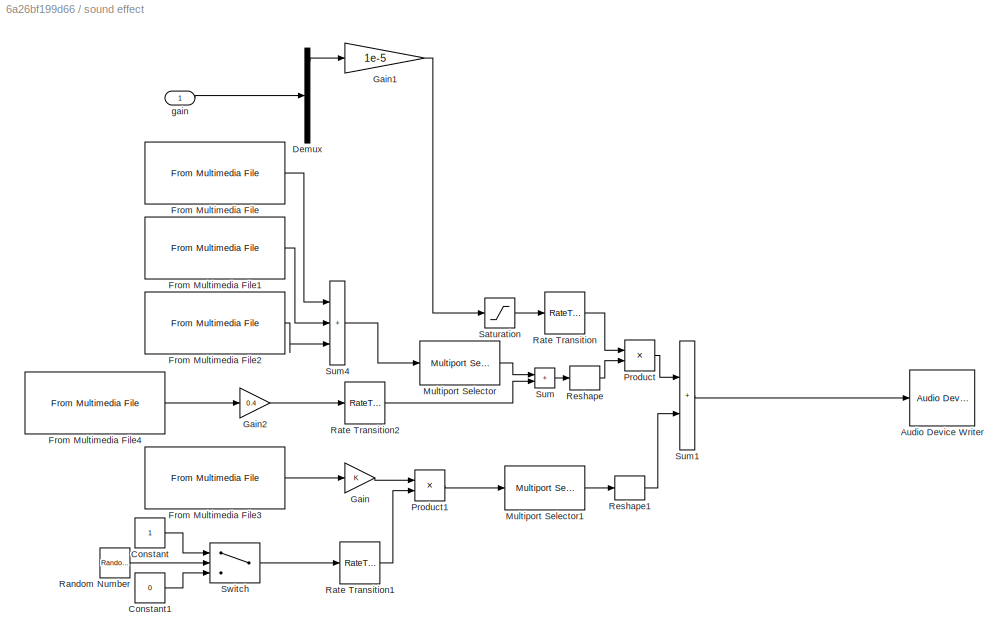
BLOCK [SubSystem] sound effect
  Commented = on
  NameLocation = right
  Ports = [1]
  RequestExecContextInheritance = off
BLOCK [Reference] sound effect/Audio Device Writer  REF=dspsnks4/Audio Device
Writer
  Ports = [1]
  SourceBlock = dspsnks4/Audio Device\nWriter
  SourceProductBaseCode = DS
  SourceType = Audio Device Writer
BLOCK [Constant] sound effect/Constant
BLOCK [Constant] sound effect/Constant1
  Value = 0
BLOCK [Demux] sound effect/Demux
  Outputs = 6
  Ports = [1, 6]
BLOCK [Reference] sound effect/From Multimedia File  REF=dspvision/From Multimedia File
  Ports = [0, 1]
  SourceBlock = dspvision/From Multimedia File
  SourceProductBaseCode = DS,HW,VP
  SourceType = From Multimedia File
BLOCK [Reference] sound effect/From Multimedia File1  REF=dspvision/From Multimedia File
  Ports = [0, 1]
  SourceBlock = dspvision/From Multimedia File
  SourceProductBaseCode = DS,HW,VP
  SourceType = From Multimedia File
BLOCK [Reference] sound effect/From Multimedia File2  REF=dspvision/From Multimedia File
  Ports = [0, 1]
  SourceBlock = dspvision/From Multimedia File
  SourceProductBaseCode = DS,HW,VP
  SourceType = From Multimedia File
BLOCK [Reference] sound effect/From Multimedia File3  REF=dspvision/From Multimedia File
  Ports = [0, 1]
  SourceBlock = dspvision/From Multimedia File
  SourceProductBaseCode = DS,HW,VP
  SourceType = From Multimedia File
BLOCK [Reference] sound effect/From Multimedia File4  REF=dspvision/From Multimedia File
  Ports = [0, 1]
  SourceBlock = dspvision/From Multimedia File
  SourceProductBaseCode = DS,HW,VP
  SourceType = From Multimedia File
BLOCK [Gain] sound effect/Gain
BLOCK [Gain] sound effect/Gain1
  Gain = 1e-5
BLOCK [Gain] sound effect/Gain2
  Gain = 0.4
BLOCK [Reference] sound effect/Multiport Selector  REF=dspindex/Multiport
Selector
  Ports = [1, 1]
  SourceBlock = dspindex/Multiport\nSelector
  SourceProductBaseCode = DS
  SourceType = Multiport Selector
BLOCK [Reference] sound effect/Multiport Selector1  REF=dspindex/Multiport
Selector
  Ports = [1, 1]
  SourceBlock = dspindex/Multiport\nSelector
  SourceProductBaseCode = DS
  SourceType = Multiport Selector
BLOCK [Product] sound effect/Product
  Ports = [2, 1]
BLOCK [Product] sound effect/Product1
  Ports = [2, 1]
BLOCK [RandomNumber] sound effect/Random Number
  SampleTime = 0.4643990929705216
BLOCK [RateTransition] sound effect/Rate Transition
BLOCK [RateTransition] sound effect/Rate Transition1
BLOCK [RateTransition] sound effect/Rate Transition2
BLOCK [Reshape] sound effect/Reshape
  Ports = [1, 1]
BLOCK [Reshape] sound effect/Reshape1
  Ports = [1, 1]
BLOCK [Saturate] sound effect/Saturation
  LowerLimit = 0.5
  UpperLimit = 1
BLOCK [Sum] sound effect/Sum
  IconShape = rectangular
  Ports = [2, 1]
BLOCK [Sum] sound effect/Sum1
  IconShape = rectangular
  Ports = [2, 1]
BLOCK [Sum] sound effect/Sum4
  IconShape = rectangular
  Inputs = +++
  Ports = [3, 1]
BLOCK [Switch] sound effect/Switch
  Criteria = u2 > Threshold
  InputSameDT = off
  SaturateOnIntegerOverflow = off
  Threshold = 1
BLOCK [Inport] sound effect/gain
BLOCK [SubSystem] state preprocessing
  Ports = [3, 2]
  RequestExecContextInheritance = off
BLOCK [Sum] state preprocessing/Sum
  Inputs = |+-
  Ports = [2, 1]
BLOCK [Sum] state preprocessing/Sum3
  Inputs = |+-
  Ports = [2, 1]
BLOCK [ToFile] state preprocessing/To File6
  Filename = desiredvelocity.mat
  MatrixName = data
  Ports = [1]
  SaveFormat = Timeseries
BLOCK [ToFile] state preprocessing/To File7
  Filename = targetvelocity.mat
  MatrixName = data
  Ports = [1]
  SaveFormat = Timeseries
BLOCK [Concatenate] state preprocessing/Vector Concatenate1
  NumInputs = 3
  Ports = [3, 1]
BLOCK [Inport] state preprocessing/desired velocity
BLOCK [Outport] state preprocessing/desired velocity (body-fixed frame)
BLOCK [Inport] state preprocessing/pose
  Port = 2
BLOCK [Inport] state preprocessing/velocity
  Port = 3
BLOCK [Outport] state preprocessing/velocity error (body-fixed frame)
  Port = 2
BLOCK [SubSystem] state preprocessing/world 2 body1
  ErrorFcn = Stateflow.Translate.translate
  PermitHierarchicalResolution = ExplicitOnly
  Ports = [2, 1]
  RequestExecContextInheritance = off
  SFBlockType = MATLAB Function
  TreatAsAtomicUnit = on
BLOCK [Demux] state preprocessing/world 2 body1/ Demux 
  Outputs = 1
  Ports = [1, 1]
BLOCK [S-Function] state preprocessing/world 2 body1/ SFunction 
  EnableBusSupport = on
  FunctionName = sf_sfun
  PortCounts = [2 2]
  Ports = [2, 2]
  SFcnIsStateOwnerBlock = off
  SFunctionDeploymentMode = off
  Tag = Stateflow S-Function 8
BLOCK [Terminator] state preprocessing/world 2 body1/ Terminator 
BLOCK [Outport] state preprocessing/world 2 body1/pb
BLOCK [Inport] state preprocessing/world 2 body1/pose
BLOCK [Inport] state preprocessing/world 2 body1/signal
  Port = 2
BLOCK [SubSystem] state preprocessing/world 2 body2
  ErrorFcn = Stateflow.Translate.translate
  PermitHierarchicalResolution = ExplicitOnly
  Ports = [2, 1]
  RequestExecContextInheritance = off
  SFBlockType = MATLAB Function
  TreatAsAtomicUnit = on
BLOCK [Demux] state preprocessing/world 2 body2/ Demux 
  Outputs = 1
  Ports = [1, 1]
BLOCK [S-Function] state preprocessing/world 2 body2/ SFunction 
  EnableBusSupport = on
  FunctionName = sf_sfun
  PortCounts = [2 2]
  Ports = [2, 2]
  SFcnIsStateOwnerBlock = off
  SFunctionDeploymentMode = off
  Tag = Stateflow S-Function 4
BLOCK [Terminator] state preprocessing/world 2 body2/ Terminator 
BLOCK [Outport] state preprocessing/world 2 body2/pb
BLOCK [Inport] state preprocessing/world 2 body2/pose
BLOCK [Inport] state preprocessing/world 2 body2/signal
  Port = 2
ANNOTATION (root): State Estimation
ANNOTATION (root): Controller
ANNOTATION (root): X-Wing Fighter
ANNOTATION (root): Visualization
ANNOTATION (root): Guidance
ANNOTATION Thrusters Controller: PID gain
ANNOTATION Thrusters Controller: Postprocessing
ANNOTATION Thrusters Controller: Preprocessing
ANNOTATION Thrusters Controller/low-level PID: Forward Speed Control
ANNOTATION Thrusters Controller/low-level PID: Pitch Control
ANNOTATION Thrusters Controller/low-level PID: Yaw Control
ANNOTATION X-Wing Model/X-wing Model: State & Force to Angular Acceleration
ANNOTATION X-Wing Model/X-wing Model: AngularVelocity to Pose
LINE Emag Gyro Controller/Constant:1 -> Emag Gyro Controller/Sum:1
LINE Emag Gyro Controller/Demux5:4 -> Emag Gyro Controller/Sum:2
LINE Emag Gyro Controller/Gain:1 -> Emag Gyro Controller/Product:2
LINE Emag Gyro Controller/Gyros PID:1 -> Emag Gyro Controller/Gain:1
LINE Emag Gyro Controller/Product:1 -> Emag Gyro Controller/gyros command:1
LINE Emag Gyro Controller/Sum:1 -> Emag Gyro Controller/Gyros PID:1
LINE Emag Gyro Controller/directional constrain:1 -> Emag Gyro Controller/Product:1
LINE Emag Gyro Controller/roll:1 -> Emag Gyro Controller/Demux5:1
NET Emag Gyro Controller:1 -> Emag Gyro:1, force estimate:3
LINE Emag Gyro/gyros command:1 -> Emag Gyro/gyros force:1
LINE Emag Gyro:1 -> Sum1:2
LINE Extended Kalman Filter/Kalman Filter/Demux:1 -> Extended Kalman Filter/Kalman Filter/Vector Concatenate:1
LINE Extended Kalman Filter/Kalman Filter/Demux:2 -> Extended Kalman Filter/Kalman Filter/Vector Concatenate1:1
LINE Extended Kalman Filter/Kalman Filter/Demux:3 -> Extended Kalman Filter/Kalman Filter/Vector Concatenate:2
LINE Extended Kalman Filter/Kalman Filter/Demux:4 -> Extended Kalman Filter/Kalman Filter/Vector Concatenate1:2
LINE Extended Kalman Filter/Kalman Filter/IC1:1 -> Extended Kalman Filter/Kalman Filter/estimated velocity:1
LINE Extended Kalman Filter/Kalman Filter/IC:1 -> Extended Kalman Filter/Kalman Filter/estimated pose:1
LINE Extended Kalman Filter/Kalman Filter/Kalmany/A:1 -> Extended Kalman Filter/Kalman Filter/Kalmany/Kalmany:3
LINE Extended Kalman Filter/Kalman Filter/Kalmany/B:1 -> Extended Kalman Filter/Kalman Filter/Kalmany/Kalmany:4
LINE Extended Kalman Filter/Kalman Filter/Kalmany/C:1 -> Extended Kalman Filter/Kalman Filter/Kalmany/Kalmany:5
LINE Extended Kalman Filter/Kalman Filter/Kalmany/Constant1:1 -> Extended Kalman Filter/Kalman Filter/Kalmany/Kalmany:8
LINE Extended Kalman Filter/Kalman Filter/Kalmany/Constant:1 -> Extended Kalman Filter/Kalman Filter/Kalmany/Kalmany:7
LINE Extended Kalman Filter/Kalman Filter/Kalmany/D:1 -> Extended Kalman Filter/Kalman Filter/Kalmany/Kalmany:6
LINE Extended Kalman Filter/Kalman Filter/Kalmany/IC2:1 -> Extended Kalman Filter/Kalman Filter/Kalmany/Memory:1
LINE Extended Kalman Filter/Kalman Filter/Kalmany/IC3:1 -> Extended Kalman Filter/Kalman Filter/Kalmany/Memory1:1
LINE Extended Kalman Filter/Kalman Filter/Kalmany/Kalmany:1 -> Extended Kalman Filter/Kalman Filter/Kalmany/x:1
LINE Extended Kalman Filter/Kalman Filter/Kalmany/Kalmany:2 -> Extended Kalman Filter/Kalman Filter/Kalmany/K:1
LINE Extended Kalman Filter/Kalman Filter/Kalmany/Kalmany:3 -> Extended Kalman Filter/Kalman Filter/Kalmany/IC2:1
LINE Extended Kalman Filter/Kalman Filter/Kalmany/Kalmany:4 -> Extended Kalman Filter/Kalman Filter/Kalmany/IC3:1
LINE Extended Kalman Filter/Kalman Filter/Kalmany/Memory1:1 -> Extended Kalman Filter/Kalman Filter/Kalmany/Kalmany:10
LINE Extended Kalman Filter/Kalman Filter/Kalmany/Memory:1 -> Extended Kalman Filter/Kalman Filter/Kalmany/Kalmany:9
LINE Extended Kalman Filter/Kalman Filter/Kalmany/u:1 -> Extended Kalman Filter/Kalman Filter/Kalmany/Kalmany:1
LINE Extended Kalman Filter/Kalman Filter/Kalmany/y:1 -> Extended Kalman Filter/Kalman Filter/Kalmany/Kalmany:2
LINE Extended Kalman Filter/Kalman Filter/Kalmany:1 -> Extended Kalman Filter/Kalman Filter/Rate Transition2:1
LINE Extended Kalman Filter/Kalman Filter/Kalmany:2 -> Extended Kalman Filter/Kalman Filter/Scope:1
LINE Extended Kalman Filter/Kalman Filter/Rate Transition1:1 -> Extended Kalman Filter/Kalman Filter/Kalmany:2
LINE Extended Kalman Filter/Kalman Filter/Rate Transition2:1 -> Extended Kalman Filter/Kalman Filter/Demux:1
LINE Extended Kalman Filter/Kalman Filter/Rate Transition3:1 -> Extended Kalman Filter/Kalman Filter/Kalmany:3
LINE Extended Kalman Filter/Kalman Filter/Rate Transition4:1 -> Extended Kalman Filter/Kalman Filter/Kalmany:4
LINE Extended Kalman Filter/Kalman Filter/Rate Transition5:1 -> Extended Kalman Filter/Kalman Filter/Kalmany:5
LINE Extended Kalman Filter/Kalman Filter/Rate Transition6:1 -> Extended Kalman Filter/Kalman Filter/Kalmany:6
LINE Extended Kalman Filter/Kalman Filter/Rate Transition:1 -> Extended Kalman Filter/Kalman Filter/Kalmany:1
LINE Extended Kalman Filter/Kalman Filter/Vector Concatenate1:1 -> Extended Kalman Filter/Kalman Filter/IC1:1
LINE Extended Kalman Filter/Kalman Filter/Vector Concatenate:1 -> Extended Kalman Filter/Kalman Filter/IC:1
LINE Extended Kalman Filter/Kalman Filter/force:1 -> Extended Kalman Filter/Kalman Filter/Rate Transition:1
LINE Extended Kalman Filter/Kalman Filter/get Kalman params:1 -> Extended Kalman Filter/Kalman Filter/Rate Transition3:1
LINE Extended Kalman Filter/Kalman Filter/get Kalman params:2 -> Extended Kalman Filter/Kalman Filter/Rate Transition4:1
LINE Extended Kalman Filter/Kalman Filter/get Kalman params:3 -> Extended Kalman Filter/Kalman Filter/Rate Transition5:1
LINE Extended Kalman Filter/Kalman Filter/get Kalman params:4 -> Extended Kalman Filter/Kalman Filter/Rate Transition6:1
LINE Extended Kalman Filter/Kalman Filter/measure:1 -> Extended Kalman Filter/Kalman Filter/Rate Transition1:1
NET Extended Kalman Filter/Kalman Filter:1 -> Extended Kalman Filter/To File:1, Extended Kalman Filter/input linearization:1, Extended Kalman Filter/pose estimated:1
LINE Extended Kalman Filter/Kalman Filter:2 -> Extended Kalman Filter/velocity estimated:1
LINE Extended Kalman Filter/force:1 -> Extended Kalman Filter/input linearization:2
LINE Extended Kalman Filter/input linearization/body 2 world 1:1 -> Extended Kalman Filter/input linearization/force1:1
LINE Extended Kalman Filter/input linearization/force:1 -> Extended Kalman Filter/input linearization/body 2 world 1:1
LINE Extended Kalman Filter/input linearization/pose:1 -> Extended Kalman Filter/input linearization/body 2 world 1:2
LINE Extended Kalman Filter/input linearization:1 -> Extended Kalman Filter/Kalman Filter:1
LINE Extended Kalman Filter/noisy measurement:1 -> Extended Kalman Filter/Kalman Filter:2
LINE Extended Kalman Filter:1 -> state preprocessing:3
NET Extended Kalman Filter:2 -> Emag Gyro Controller:1, R2D2.1:1, Repulsorlift Controller:2, Thrusters Controller:3, estimated state:1, force estimate:1, state preprocessing:2
NET R2D2.1/Constant:1 -> R2D2.1/Mux:4, R2D2.1/Mux:5, R2D2.1/Mux:6
LINE R2D2.1/Demux:1 -> R2D2.1/Saturation:1
LINE R2D2.1/Demux:2 -> R2D2.1/Saturation1:1
LINE R2D2.1/Demux:3 -> R2D2.1/Mux:3
LINE R2D2.1/Mux:1 -> R2D2.1/desired velocity:1
LINE R2D2.1/Saturation1:1 -> R2D2.1/Mux:2
LINE R2D2.1/Saturation:1 -> R2D2.1/Mux:1
LINE R2D2.1/look ahead:1 -> R2D2.1/Demux:1
NET R2D2.1/pose:1 -> R2D2.1/look ahead:3, R2D2.1/traj generator:1
NET R2D2.1/traj generator/Integrator:1 -> R2D2.1/traj generator/control point idx:1, R2D2.1/traj generator/trajectory gens:2
LINE R2D2.1/traj generator/pose:1 -> R2D2.1/traj generator/trajectory gens:1
LINE R2D2.1/traj generator/trajectory gens:1 -> R2D2.1/traj generator/previous control point:1
LINE R2D2.1/traj generator/trajectory gens:2 -> R2D2.1/traj generator/next control point:1
LINE R2D2.1/traj generator/trajectory gens:3 -> R2D2.1/traj generator/Integrator:1
NET R2D2.1/traj generator:1 -> R2D2.1/Data Store Write:1, R2D2.1/look ahead:4
LINE R2D2.1/traj generator:2 -> R2D2.1/look ahead:1
LINE R2D2.1/traj generator:3 -> R2D2.1/look ahead:2
LINE R2D2.1:1 -> state preprocessing:1
LINE Repulsorlift Controller/Demux1:3 -> Repulsorlift Controller/Saturation:1
LINE Repulsorlift Controller/Gain:1 -> Repulsorlift Controller/Product:2
LINE Repulsorlift Controller/Product:1 -> Repulsorlift Controller/Sum:1
LINE Repulsorlift Controller/Repulsorlift PID:1 -> Repulsorlift Controller/Gain:1
LINE Repulsorlift Controller/Saturation:1 -> Repulsorlift Controller/Repulsorlift PID:1
LINE Repulsorlift Controller/Sum:1 -> Repulsorlift Controller/repulsorlift command:1
LINE Repulsorlift Controller/directional constrain:1 -> Repulsorlift Controller/Product:1
NET Repulsorlift Controller/gravitational force/Subsystem/Gravitational Force:1 -> Repulsorlift Controller/gravitational force/Subsystem/Product:2, Repulsorlift Controller/gravitational force/Subsystem/z-axis gravitational force:1
LINE Repulsorlift Controller/gravitational force/Subsystem/Product:1 -> Repulsorlift Controller/gravitational force/Subsystem/Fg:1
LINE Repulsorlift Controller/gravitational force/Subsystem/directional constrain:1 -> Repulsorlift Controller/gravitational force/Subsystem/Product:1
LINE Repulsorlift Controller/gravitational force/Subsystem/mass:1 -> Repulsorlift Controller/gravitational force/Subsystem/Gravitational Force:1
LINE Repulsorlift Controller/gravitational force/Subsystem/pose:1 -> Repulsorlift Controller/gravitational force/Subsystem/Gravitational Force:2
LINE Repulsorlift Controller/gravitational force/Subsystem:1 -> Repulsorlift Controller/gravitational force/gravitational force visualization:1
LINE Repulsorlift Controller/gravitational force/Subsystem:2 -> Repulsorlift Controller/gravitational force/world 2 body :1
LINE Repulsorlift Controller/gravitational force/mass:1 -> Repulsorlift Controller/gravitational force/Subsystem:1
NET Repulsorlift Controller/gravitational force/pose:1 -> Repulsorlift Controller/gravitational force/Subsystem:2, Repulsorlift Controller/gravitational force/world 2 body :2
LINE Repulsorlift Controller/gravitational force/world 2 body :1 -> Repulsorlift Controller/gravitational force/gravitational force:1
LINE Repulsorlift Controller/gravitational force:1 -> Repulsorlift Controller/Sum:2
LINE Repulsorlift Controller/mass <kg>:1 -> Repulsorlift Controller/gravitational force:2
LINE Repulsorlift Controller/pose:1 -> Repulsorlift Controller/gravitational force:1
LINE Repulsorlift Controller/vz error:1 -> Repulsorlift Controller/Demux1:1
NET Repulsorlift Controller:1 -> Repulsorlift:1, force estimate:4
LINE Repulsorlift/repulsorlift command:1 -> Repulsorlift/repulsorlift force:1
LINE Repulsorlift:1 -> Sum1:3
NET Sum1:1 -> X-Wing Model:1, sound effect:1
LINE Thrusters Controller/  :1 -> Thrusters Controller/Gain:1
LINE Thrusters Controller/Gain:1 -> Thrusters Controller/thrusters command:1
LINE Thrusters Controller/Kd:1 -> Thrusters Controller/low-level PID:6
LINE Thrusters Controller/Ki:1 -> Thrusters Controller/low-level PID:5
LINE Thrusters Controller/Kp:1 -> Thrusters Controller/low-level PID:4
LINE Thrusters Controller/N:1 -> Thrusters Controller/low-level PID:7
LINE Thrusters Controller/Sum:1 -> Thrusters Controller/low-level PID:2
LINE Thrusters Controller/Vector Concatenate:1 -> Thrusters Controller/  :2
LINE Thrusters Controller/additional pitch PID/Gain1:1 -> Thrusters Controller/additional pitch PID/Out1:1
LINE Thrusters Controller/additional pitch PID/pitch PID1:1 -> Thrusters Controller/additional pitch PID/Gain1:1
LINE Thrusters Controller/additional pitch PID/u:1 -> Thrusters Controller/additional pitch PID/pitch PID1:1
LINE Thrusters Controller/additional pitch PID:1 -> Thrusters Controller/Sum:1
LINE Thrusters Controller/compute additional pitch error/Abs:1 -> Thrusters Controller/compute additional pitch error/Switch:2
LINE Thrusters Controller/compute additional pitch error/Constant:1 -> Thrusters Controller/compute additional pitch error/Switch:3
NET Thrusters Controller/compute additional pitch error/Demux4:3 -> Thrusters Controller/compute additional pitch error/Abs:1, Thrusters Controller/compute additional pitch error/Switch:1
LINE Thrusters Controller/compute additional pitch error/Saturation:1 -> Thrusters Controller/compute additional pitch error/addition pitch error:1
LINE Thrusters Controller/compute additional pitch error/Switch:1 -> Thrusters Controller/compute additional pitch error/Saturation:1
LINE Thrusters Controller/compute additional pitch error/velocity error (world-fixed frame):1 -> Thrusters Controller/compute additional pitch error/Demux4:1
LINE Thrusters Controller/compute additional pitch error:1 -> Thrusters Controller/additional pitch PID:1
LINE Thrusters Controller/compute forward error/Demux1:1 -> Thrusters Controller/compute forward error/forward error:1
LINE Thrusters Controller/compute forward error/velocity error:1 -> Thrusters Controller/compute forward error/Demux1:1
LINE Thrusters Controller/compute forward error:1 -> Thrusters Controller/low-level PID:1
LINE Thrusters Controller/compute pitch error/Constant2:1 -> Thrusters Controller/compute pitch error/Sum1:1
LINE Thrusters Controller/compute pitch error/Demux5:5 -> Thrusters Controller/compute pitch error/Sum1:2
LINE Thrusters Controller/compute pitch error/Sum1:1 -> Thrusters Controller/compute pitch error/pitch error:1
LINE Thrusters Controller/compute pitch error/pose:1 -> Thrusters Controller/compute pitch error/Demux5:1
LINE Thrusters Controller/compute pitch error:1 -> Thrusters Controller/Sum:2
LINE Thrusters Controller/compute yaw error/Demux2:2 -> Thrusters Controller/compute yaw error/vy:1
LINE Thrusters Controller/compute yaw error/pose:1 -> Thrusters Controller/compute yaw error/Demux2:1
LINE Thrusters Controller/compute yaw error:1 -> Thrusters Controller/low-level PID:3
LINE Thrusters Controller/desired velocity:1 -> Thrusters Controller/compute yaw error:1
NET Thrusters Controller/low-level PID/D:1 -> Thrusters Controller/low-level PID/forward PID:4, Thrusters Controller/low-level PID/gain adaptation:1, Thrusters Controller/low-level PID/pitch PID:4
NET Thrusters Controller/low-level PID/I:1 -> Thrusters Controller/low-level PID/forward PID:3, Thrusters Controller/low-level PID/pitch PID:3, Thrusters Controller/low-level PID/yaw PID:3
NET Thrusters Controller/low-level PID/N:1 -> Thrusters Controller/low-level PID/forward PID:5, Thrusters Controller/low-level PID/pitch PID:5, Thrusters Controller/low-level PID/yaw PID:5
NET Thrusters Controller/low-level PID/P:1 -> Thrusters Controller/low-level PID/forward PID:2, Thrusters Controller/low-level PID/gain scaling:1, Thrusters Controller/low-level PID/pitch PID:2
LINE Thrusters Controller/low-level PID/forward PID:1 -> Thrusters Controller/low-level PID/x pid:1
LINE Thrusters Controller/low-level PID/forward speed error:1 -> Thrusters Controller/low-level PID/forward PID:1
LINE Thrusters Controller/low-level PID/gain adaptation/Data Store Read1:1 -> Thrusters Controller/low-level PID/gain adaptation/if = 6:1
LINE Thrusters Controller/low-level PID/gain adaptation/Gain:1 -> Thrusters Controller/low-level PID/gain adaptation/o:1
LINE Thrusters Controller/low-level PID/gain adaptation/Sum1:1 -> Thrusters Controller/low-level PID/gain adaptation/Product:1
LINE Thrusters Controller/low-level PID/gain adaptation/final gain:1 -> Thrusters Controller/low-level PID/gain adaptation/Sum1:1
NET Thrusters Controller/low-level PID/gain adaptation/i:1 -> Thrusters Controller/low-level PID/gain adaptation/Gain:1, Thrusters Controller/low-level PID/gain adaptation/Product:2
LINE Thrusters Controller/low-level PID/gain adaptation/if = 6/Constant2:1 -> Thrusters Controller/low-level PID/gain adaptation/if = 6/Switch:1
LINE Thrusters Controller/low-level PID/gain adaptation/if = 6/Constant3:1 -> Thrusters Controller/low-level PID/gain adaptation/if = 6/Switch:3
LINE Thrusters Controller/low-level PID/gain adaptation/if = 6/Constant:1 -> Thrusters Controller/low-level PID/gain adaptation/if = 6/Sum:2
LINE Thrusters Controller/low-level PID/gain adaptation/if = 6/Sum:1 -> Thrusters Controller/low-level PID/gain adaptation/if = 6/Switch:2
LINE Thrusters Controller/low-level PID/gain adaptation/if = 6/Switch:1 -> Thrusters Controller/low-level PID/gain adaptation/if = 6/output:1
LINE Thrusters Controller/low-level PID/gain adaptation/if = 6/input:1 -> Thrusters Controller/low-level PID/gain adaptation/if = 6/Sum:1
LINE Thrusters Controller/low-level PID/gain adaptation/if = 6:1 -> Thrusters Controller/low-level PID/gain adaptation/final gain:1
LINE Thrusters Controller/low-level PID/gain adaptation/initial gain:1 -> Thrusters Controller/low-level PID/gain adaptation/Sum1:2
LINE Thrusters Controller/low-level PID/gain adaptation:1 -> Thrusters Controller/low-level PID/yaw PID:4
LINE Thrusters Controller/low-level PID/gain scaling:1 -> Thrusters Controller/low-level PID/yaw PID:2
LINE Thrusters Controller/low-level PID/pitch PID:1 -> Thrusters Controller/low-level PID/pitch pid:1
LINE Thrusters Controller/low-level PID/pitch error:1 -> Thrusters Controller/low-level PID/pitch PID:1
LINE Thrusters Controller/low-level PID/yaw PID:1 -> Thrusters Controller/low-level PID/yaw pid:1
LINE Thrusters Controller/low-level PID/yaw error:1 -> Thrusters Controller/low-level PID/yaw PID:1
LINE Thrusters Controller/low-level PID:1 -> Thrusters Controller/Vector Concatenate:1
LINE Thrusters Controller/low-level PID:2 -> Thrusters Controller/Vector Concatenate:2
LINE Thrusters Controller/low-level PID:3 -> Thrusters Controller/Vector Concatenate:3
LINE Thrusters Controller/pose:1 -> Thrusters Controller/compute pitch error:1
LINE Thrusters Controller/selection matrix:1 -> Thrusters Controller/  :1
NET Thrusters Controller/velocity error (body-fixed frame):1 -> Thrusters Controller/compute additional pitch error:1, Thrusters Controller/compute forward error:1
NET Thrusters Controller:1 -> Thrusters:1, force estimate:2
LINE Thrusters/Matrix Multiply2:1 -> Thrusters/combined thrusters force:1
LINE Thrusters/threster command:1 -> Thrusters/Matrix Multiply2:2
LINE Thrusters/thrust matrix:1 -> Thrusters/Matrix Multiply2:1
LINE Thrusters:1 -> Sum1:1
LINE X-Wing Model/Sum:1 -> X-Wing Model/X-wing Model:1
LINE X-Wing Model/X-wing Model/Constant:1 -> X-Wing Model/X-wing Model/Product:1
NET X-Wing Model/X-wing Model/Product:1 -> X-Wing Model/X-wing Model/forward dynamic:1, X-Wing Model/X-wing Model/velocity transformation:2
LINE X-Wing Model/X-wing Model/angular velocity integrater:1 -> X-Wing Model/X-wing Model/Product:2
LINE X-Wing Model/X-wing Model/force:1 -> X-Wing Model/X-wing Model/forward dynamic:2
LINE X-Wing Model/X-wing Model/forward dynamic:1 -> X-Wing Model/X-wing Model/angular velocity integrater:1
LINE X-Wing Model/X-wing Model/inertia:1 -> X-Wing Model/X-wing Model/forward dynamic:4
NET X-Wing Model/X-wing Model/linear pose integrater:1 -> X-Wing Model/X-wing Model/pose:1, X-Wing Model/X-wing Model/velocity transformation:1
LINE X-Wing Model/X-wing Model/mass:1 -> X-Wing Model/X-wing Model/forward dynamic:3
NET X-Wing Model/X-wing Model/velocity transformation:1 -> X-Wing Model/X-wing Model/linear pose integrater:1, X-Wing Model/X-wing Model/velocity:1
LINE X-Wing Model/X-wing Model:1 -> X-Wing Model/output pose:1
LINE X-Wing Model/force:1 -> X-Wing Model/Sum:1
NET X-Wing Model/gravitational force/Subsystem/Gravitational Force:1 -> X-Wing Model/gravitational force/Subsystem/Product:2, X-Wing Model/gravitational force/Subsystem/z-axis gravitational force:1
LINE X-Wing Model/gravitational force/Subsystem/Product:1 -> X-Wing Model/gravitational force/Subsystem/Fg:1
LINE X-Wing Model/gravitational force/Subsystem/directional constrain:1 -> X-Wing Model/gravitational force/Subsystem/Product:1
LINE X-Wing Model/gravitational force/Subsystem/mass:1 -> X-Wing Model/gravitational force/Subsystem/Gravitational Force:1
LINE X-Wing Model/gravitational force/Subsystem/pose:1 -> X-Wing Model/gravitational force/Subsystem/Gravitational Force:2
LINE X-Wing Model/gravitational force/Subsystem:1 -> X-Wing Model/gravitational force/gravitational force visualization:1
LINE X-Wing Model/gravitational force/Subsystem:2 -> X-Wing Model/gravitational force/world 2 body :1
LINE X-Wing Model/gravitational force/mass:1 -> X-Wing Model/gravitational force/Subsystem:1
NET X-Wing Model/gravitational force/pose:1 -> X-Wing Model/gravitational force/Subsystem:2, X-Wing Model/gravitational force/world 2 body :2
LINE X-Wing Model/gravitational force/world 2 body :1 -> X-Wing Model/gravitational force/gravitational force:1
LINE X-Wing Model/gravitational force:1 -> X-Wing Model/Sum:2
LINE X-Wing Model/innertia <kg m2>:1 -> X-Wing Model/X-wing Model:3
LINE X-Wing Model/input pose:1 -> X-Wing Model/gravitational force:1
NET X-Wing Model/mass <kg>:1 -> X-Wing Model/X-wing Model:2, X-Wing Model/gravitational force:2
NET X-Wing Model:1 -> Display:1, X-Wing Model:2, X-Wing Simulation:1, add noise:1
LINE X-Wing Simulation/Constant1:1 -> X-Wing Simulation/flat earth 2 LLA:1
LINE X-Wing Simulation/Demux:1 -> X-Wing Simulation/flat earth 2 LLA:2
LINE X-Wing Simulation/Demux:2 -> X-Wing Simulation/Mux1:2
LINE X-Wing Simulation/MATLAB Function:1 -> X-Wing Simulation/FlightGear Simulation:1
LINE X-Wing Simulation/Mux1:1 -> X-Wing Simulation/MATLAB Function:1
LINE X-Wing Simulation/flat earth 2 LLA/Constant:1 -> X-Wing Simulation/flat earth 2 LLA/Flat Earth to LLA:2
LINE X-Wing Simulation/flat earth 2 LLA/Flat Earth to LLA:1 -> X-Wing Simulation/flat earth 2 LLA/Mux:1
LINE X-Wing Simulation/flat earth 2 LLA/Flat Earth to LLA:2 -> X-Wing Simulation/flat earth 2 LLA/Mux:2
LINE X-Wing Simulation/flat earth 2 LLA/Gain:1 -> X-Wing Simulation/flat earth 2 LLA/Flat Earth to LLA:1
LINE X-Wing Simulation/flat earth 2 LLA/Mux:1 -> X-Wing Simulation/flat earth 2 LLA/position (LLA):1
LINE X-Wing Simulation/flat earth 2 LLA/Product:1 -> X-Wing Simulation/flat earth 2 LLA/Gain:1
LINE X-Wing Simulation/flat earth 2 LLA/multiplication gain:1 -> X-Wing Simulation/flat earth 2 LLA/Product:1
LINE X-Wing Simulation/flat earth 2 LLA/position (flat):1 -> X-Wing Simulation/flat earth 2 LLA/Product:2
LINE X-Wing Simulation/flat earth 2 LLA:1 -> X-Wing Simulation/Mux1:1
LINE X-Wing Simulation/pose:1 -> X-Wing Simulation/Demux:1
LINE X-Wing Simulation/special/Constant2:1 -> X-Wing Simulation/special/Switch:1
LINE X-Wing Simulation/special/Constant3:1 -> X-Wing Simulation/special/Switch:3
LINE X-Wing Simulation/special/Constant4:1 -> X-Wing Simulation/special/Max:2
LINE X-Wing Simulation/special/Constant:1 -> X-Wing Simulation/special/Sum:2
NET X-Wing Simulation/special/Data Store Read:1 -> X-Wing Simulation/special/Display2:1, X-Wing Simulation/special/Sum:1
NET X-Wing Simulation/special/Integrator1:1 -> X-Wing Simulation/special/Display:1, X-Wing Simulation/special/Sum2:2, X-Wing Simulation/special/roll:1
LINE X-Wing Simulation/special/Integrator:1 -> X-Wing Simulation/special/Integrator1:1
NET X-Wing Simulation/special/Max:1 -> X-Wing Simulation/special/Gain:1, X-Wing Simulation/special/Memory:1
LINE X-Wing Simulation/special/Memory:1 -> X-Wing Simulation/special/Sum1:1
LINE X-Wing Simulation/special/PID Controller:1 -> X-Wing Simulation/special/Integrator:1
LINE X-Wing Simulation/special/Saturation:1 -> X-Wing Simulation/special/PID Controller:1
LINE X-Wing Simulation/special/Sum1:1 -> X-Wing Simulation/special/Max:1
LINE X-Wing Simulation/special/Sum2:1 -> X-Wing Simulation/special/Saturation:1
LINE X-Wing Simulation/special/Sum:1 -> X-Wing Simulation/special/Switch:2
NET X-Wing Simulation/special/Switch:1 -> X-Wing Simulation/special/Display1:1, X-Wing Simulation/special/Sum2:1
LINE add noise/Measurement Noise/Constant:1 -> add noise/Measurement Noise/Gain:1
LINE add noise/Measurement Noise/Gain:1 -> add noise/Measurement Noise/Gaussian Noise:1
LINE add noise/Measurement Noise/Gaussian Noise:1 -> add noise/Measurement Noise/nois:1
LINE add noise/Measurement Noise:1 -> add noise/Sum:2
NET add noise/Sum:1 -> add noise/To File1:1, add noise/out:1
NET add noise/in:1 -> add noise/Sum:1, add noise/To File3:1
NET add noise:1 -> Extended Kalman Filter:2, noisy measurement:1
LINE estimated state/ :1 -> estimated state/scaling gain:1
LINE estimated state/Demux3:1 -> estimated state/XY Graph:1
LINE estimated state/Demux3:2 -> estimated state/XY Graph:2
LINE estimated state/scaling gain:1 -> estimated state/Demux3:1
LINE force estimate/Emag Gyro1/gyros command:1 -> force estimate/Emag Gyro1/gyros force:1
NET force estimate/Emag Gyro1:1 -> force estimate/Sum:2, force estimate/Vector Concatenate2:2
LINE force estimate/Repulsorlift1/repulsorlift command:1 -> force estimate/Repulsorlift1/repulsorlift force:1
NET force estimate/Repulsorlift1:1 -> force estimate/Sum:3, force estimate/Vector Concatenate2:3
NET force estimate/Sum:1 -> force estimate/To File5:1, force estimate/force:1
LINE force estimate/Thrusters1/Matrix Multiply2:1 -> force estimate/Thrusters1/combined thrusters force:1
LINE force estimate/Thrusters1/threster command:1 -> force estimate/Thrusters1/Matrix Multiply2:2
LINE force estimate/Thrusters1/thrust matrix:1 -> force estimate/Thrusters1/Matrix Multiply2:1
NET force estimate/Thrusters1:1 -> force estimate/Sum:1, force estimate/Vector Concatenate2:1
LINE force estimate/Vector Concatenate2:1 -> force estimate/To File4:1
LINE force estimate/Vector Concatenate:1 -> force estimate/To File2:1
NET force estimate/gravitational force/Subsystem/Gravitational Force:1 -> force estimate/gravitational force/Subsystem/Product:2, force estimate/gravitational force/Subsystem/z-axis gravitational force:1
LINE force estimate/gravitational force/Subsystem/Product:1 -> force estimate/gravitational force/Subsystem/Fg:1
LINE force estimate/gravitational force/Subsystem/directional constrain:1 -> force estimate/gravitational force/Subsystem/Product:1
LINE force estimate/gravitational force/Subsystem/mass:1 -> force estimate/gravitational force/Subsystem/Gravitational Force:1
LINE force estimate/gravitational force/Subsystem/pose:1 -> force estimate/gravitational force/Subsystem/Gravitational Force:2
LINE force estimate/gravitational force/Subsystem:1 -> force estimate/gravitational force/gravitational force visualization:1
LINE force estimate/gravitational force/Subsystem:2 -> force estimate/gravitational force/world 2 body :1
LINE force estimate/gravitational force/mass:1 -> force estimate/gravitational force/Subsystem:1
NET force estimate/gravitational force/pose:1 -> force estimate/gravitational force/Subsystem:2, force estimate/gravitational force/world 2 body :2
LINE force estimate/gravitational force/world 2 body :1 -> force estimate/gravitational force/gravitational force:1
LINE force estimate/gravitational force:1 -> force estimate/Sum:4
NET force estimate/gyros command:1 -> force estimate/Emag Gyro1:1, force estimate/Vector Concatenate:2
LINE force estimate/mass <kg>:1 -> force estimate/gravitational force:2
LINE force estimate/pose:1 -> force estimate/gravitational force:1
NET force estimate/repulsorlift command:1 -> force estimate/Repulsorlift1:1, force estimate/Vector Concatenate:3
NET force estimate/threster command:1 -> force estimate/Thrusters1:1, force estimate/Vector Concatenate:1
LINE force estimate:1 -> Extended Kalman Filter:1
LINE noisy measurement/ :1 -> noisy measurement/scaling gain:1
LINE noisy measurement/Demux3:1 -> noisy measurement/XY Graph:1
LINE noisy measurement/Demux3:2 -> noisy measurement/XY Graph:2
LINE noisy measurement/scaling gain:1 -> noisy measurement/Demux3:1
LINE sound effect/Constant1:1 -> sound effect/Switch:3
LINE sound effect/Constant:1 -> sound effect/Switch:1
LINE sound effect/Demux:1 -> sound effect/Gain1:1
LINE sound effect/From Multimedia File1:1 -> sound effect/Sum4:2
LINE sound effect/From Multimedia File2:1 -> sound effect/Sum4:3
LINE sound effect/From Multimedia File3:1 -> sound effect/Gain:1
LINE sound effect/From Multimedia File4:1 -> sound effect/Gain2:1
LINE sound effect/From Multimedia File:1 -> sound effect/Sum4:1
LINE sound effect/Gain1:1 -> sound effect/Saturation:1
LINE sound effect/Gain2:1 -> sound effect/Rate Transition2:1
LINE sound effect/Gain:1 -> sound effect/Product1:1
LINE sound effect/Multiport Selector1:1 -> sound effect/Reshape1:1
LINE sound effect/Multiport Selector:1 -> sound effect/Sum:1
LINE sound effect/Product1:1 -> sound effect/Multiport Selector1:1
LINE sound effect/Product:1 -> sound effect/Sum1:1
LINE sound effect/Random Number:1 -> sound effect/Switch:2
LINE sound effect/Rate Transition1:1 -> sound effect/Product1:2
LINE sound effect/Rate Transition2:1 -> sound effect/Sum:2
LINE sound effect/Rate Transition:1 -> sound effect/Product:1
LINE sound effect/Reshape1:1 -> sound effect/Sum1:2
LINE sound effect/Reshape:1 -> sound effect/Product:2
LINE sound effect/Saturation:1 -> sound effect/Rate Transition:1
LINE sound effect/Sum1:1 -> sound effect/Audio Device Writer:1
LINE sound effect/Sum4:1 -> sound effect/Multiport Selector:1
LINE sound effect/Sum:1 -> sound effect/Reshape:1
LINE sound effect/Switch:1 -> sound effect/Rate Transition1:1
LINE sound effect/gain:1 -> sound effect/Demux:1
LINE state preprocessing/Sum3:1 -> state preprocessing/Vector Concatenate1:2
NET state preprocessing/Sum:1 -> state preprocessing/Vector Concatenate1:3, state preprocessing/velocity error (body-fixed frame):1
LINE state preprocessing/Vector Concatenate1:1 -> state preprocessing/To File7:1
NET state preprocessing/desired velocity:1 -> state preprocessing/Sum3:1, state preprocessing/To File6:1, state preprocessing/world 2 body1:2
NET state preprocessing/pose:1 -> state preprocessing/world 2 body1:1, state preprocessing/world 2 body2:1
NET state preprocessing/velocity:1 -> state preprocessing/Sum3:2, state preprocessing/world 2 body2:2
NET state preprocessing/world 2 body1:1 -> state preprocessing/Sum:1, state preprocessing/Vector Concatenate1:1, state preprocessing/desired velocity (body-fixed frame):1
LINE state preprocessing/world 2 body2:1 -> state preprocessing/Sum:2
LINE state preprocessing:1 -> Thrusters Controller:1
NET state preprocessing:2 -> Repulsorlift Controller:1, Thrusters Controller:2
note: NET lines group one-source signal fan-out (src -> all destinations, sorted); 1:1 wires keep LINE
CHART Extended Kalman Filter/Kalman Filter/get Kalman params states=1 transitions=1
  STATE_LABEL 'eML_blk_kernel()'
  STATE_LABEL 'SCRIPT:\nfunction [A,B,C,D]= getKaprams()\nz = zeros(3,3);\ni = eye(3);\ndt = 0.005;\nI = [36145 0 0; 2.26927 116437.915354 0.00035374516; 0 0.00035374516 90590.2796914];\nm = 10000;\n\n\nA = [i dt*i z z; z i z z; z z i dt*i; z z z i];\nB = [z z; dt*i/m z; z z; z inv(I)*dt*i];\nC = [i z z z; z z i z];\nD = [z z; z z];\n\n\n'
CHART Extended Kalman Filter/input linearization/body 2 world 1 states=1 transitions=1
  STATE_LABEL 'eML_blk_kernel()'
  STATE_LABEL 'SCRIPT:\nfunction pb= fcn(signal,pose)\nR = rotz(rad2deg(pose(6)))*roty(rad2deg(pose(5)))*rotx(rad2deg(pose(4)));\nroll = pose(4);\npitch = pose(5);\nyaw = pose(6);\n%T = [1 sin(roll)*tan(pitch) cos(roll)*tan(pitch); 0 cos(roll) -sin(roll); 0 sin(roll)/cos(pitch) cos(roll)/cos(pitch)];\npb = [R*(signal(1:3));R*signal(4:6)];\n'
CHART Extended Kalman Filter/Kalman Filter/Kalmany/Kalmany states=1 transitions=1
  STATE_LABEL 'eML_blk_kernel()'
  STATE_LABEL "SCRIPT:\nfunction [x,K,x__,P__] = kalmany(u,y,A,B,C,D,R,Q,x_,P_)\n\n% Kalman gain\n\nK = (P_*C.'*inv(C*P_*C.'+R+1e-6));\n\n% correction step\nx = x_+K*(y-(C*x_+D*u)); % state update\nP = (eye(12)-K*C)*P_; % covariance update\n\n% prediction step\nx__ = (A*x)+(B*u);\nP__ = A*P*A.'+Q;\n\n\n\n"
CHART Repulsorlift Controller/gravitational force/Subsystem/Gravitational Force states=1 transitions=1
  STATE_LABEL 'eML_blk_kernel()'
  STATE_LABEL 'SCRIPT:\nfunction fg = gravitational_force(m,pose)\n\n\nG = 6.67259*10^-11; % gravitational constant < Nm2/kg2 >\nM = 5.98*10^24; % earth mass <kg>\nR = 6.38*10^6; % average earth radius <m>\nr = R + pose(3)*1000; % distance from the surface <m>\nr = r;\nfg = G*m*M/(r*r); % F = Gmm/r^2\n\nend\n'  <repeated x3 — deduplicated; at blocks: Gravitational Force>
CHART Repulsorlift Controller/gravitational force/world 2 body  states=1 transitions=1
  STATE_LABEL 'eML_blk_kernel()'
  STATE_LABEL "SCRIPT:\nfunction pb= fcn(signal,pose)\nR = rotz(rad2deg(pose(6)))*roty(rad2deg(pose(5)))*rotx(rad2deg(pose(4)));\npb = [R.'*(signal(1:3));signal(4:6)];\n"
CHART force estimate/gravitational force/Subsystem/Gravitational Force states=1 transitions=1
  STATE_LABEL 'eML_blk_kernel()'
CHART force estimate/gravitational force/world 2 body  states=1 transitions=1
  STATE_LABEL 'eML_blk_kernel()'
  STATE_LABEL "SCRIPT:\nfunction pb= fcn(signal,pose)\nR = rotz(rad2deg(pose(6)))*roty(rad2deg(pose(5)))*rotx(rad2deg(pose(4)));\npb = [R.'*(signal(1:3));signal(4:6)];\n"
CHART X-Wing Model/gravitational force/Subsystem/Gravitational Force states=1 transitions=1
  STATE_LABEL 'eML_blk_kernel()'
CHART X-Wing Model/X-wing Model/forward dynamic states=1 transitions=1
  STATE_LABEL 'eML_blk_kernel()'
  STATE_LABEL 'SCRIPT:\nfunction ddnu = forwardDynamic(nu,tau,m,I)\n\n% extracted state variable\nomega = nu(4:6); % droll dpitch dyaw\n\n% force \nF = [0;0;0;0;0;0]+tau;\n\n% constant\nM = [m*eye(3) zeros(3,3);zeros(3,3) I]; % mass/inertia matrix\nC = [m*skewy(omega) zeros(3,3);zeros(3,3) -skewy(I*omega)];\n\nddnu = inv(M)*(F-C*nu);\nend\n\nfunction s = skewy(x)\n    s = zeros(3,3);\n    s(1,2) = -x(3);\n    s(1,3) = x(2);\n    s(...<+77ch>'
CHART R2D2.1/look ahead states=1 transitions=1
  STATE_LABEL 'eML_blk_kernel()'
  STATE_LABEL 'SCRIPT:\nfunction v  = guidance(pi_,pj_,p_,cid)\n% loop ahead guidance system\n% input:\n%       - pi_ : previous control point/pose\n%       - pj_ : next control point/pose\n%       - p_  : current pose\n% output:\n%       - v   : desired velocity\n\n% \neta = 100; % lookahead gain\n\n% extract x y z coordinate\np = [p_(1);p_(2);100*p_(3)]; % from current pose\npi = [pi_(1:2);100*pi_(3)]; % from previous contro...<+698ch>'
CHART state preprocessing/world 2 body2 states=1 transitions=1
  STATE_LABEL 'eML_blk_kernel()'
  STATE_LABEL "SCRIPT:\nfunction pb= fcn(pose,signal)\nR = rotz(rad2deg(pose(6)))*roty(rad2deg(pose(5)))*rotx(rad2deg(pose(4)));\npb = [R.'*signal(1:3);signal(4:6)];\n"
CHART X-Wing Model/X-wing Model/velocity transformation states=1 transitions=1
  STATE_LABEL 'eML_blk_kernel()'
  STATE_LABEL 'SCRIPT:\nfunction v = velocityTrans(nu,dnu)\n    roll = nu(4);\n    pitch = nu(5);\n    yaw = nu(6);\n    Rx = [1 0 0;0 cos(roll) -sin(roll); 0 sin(roll) cos(roll)];\n    Ry = [cos(pitch) 0 sin(pitch); 0 1 0; -sin(pitch) 0 cos(pitch)];\n    Rz = [cos(yaw) -sin(yaw) 0; sin(yaw) cos(yaw) 0;0 0 1];\n    R = Rz*Ry*Rx;\n    T = [1 sin(roll)*tan(pitch) cos(roll)*tan(pitch); 0 cos(roll) -sin(roll); 0 sin(roll)/co...<+87ch>'
CHART X-Wing Simulation/MATLAB Function states=1 transitions=1
  STATE_LABEL 'eML_blk_kernel()'
  STATE_LABEL 'SCRIPT:\nfunction pose_ = simulation_interface(pose,roll)\nR = 6.38*10^6; % average earth radius <m>\ngain = 1e3;\nx = pose(1); % flip the x-axis;\ny = pose(2);\nz = pose(3);\nposition = [x;y;z];%+[-45;83.1;0];\npose_ = [position;-pose(5);-10/10*pose(4);(-1.57-pose(6))];\nend\n'
CHART X-Wing Model/gravitational force/world 2 body  states=1 transitions=1
  STATE_LABEL 'eML_blk_kernel()'
  STATE_LABEL "SCRIPT:\nfunction pb= fcn(signal,pose)\nR = rotz(rad2deg(pose(6)))*roty(rad2deg(pose(5)))*rotx(rad2deg(pose(4)));\npb = [R.'*(signal(1:3));signal(4:6)];\n"
CHART state preprocessing/world 2 body1 states=1 transitions=1
  STATE_LABEL 'eML_blk_kernel()'
  STATE_LABEL "SCRIPT:\nfunction pb= fcn(pose,signal)\nR = rotz(rad2deg(pose(6)))*roty(rad2deg(pose(5)))*rotx(rad2deg(pose(4)));\npb = [R.'*signal(1:3);signal(4:6)];\n"
CHART add noise/Measurement Noise/Gaussian Noise states=1 transitions=1
  STATE_LABEL 'eML_blk_kernel()'
  STATE_LABEL 'SCRIPT:\nfunction nois = noise(sigma)\nnois = [0;0;0;0;0;0];\nfor i=1:1:6\n    \n    nois(i) = normrnd(0,sigma(i,1));\nend\n'
CHART R2D2.1/traj generator/trajectory gens states=1 transitions=1
  STATE_LABEL 'eML_blk_kernel()'
  STATE_LABEL 'SCRIPT:\nfunction [posei,posej,added_idx]= trajectoryGens(fb,idx)\n% generate trajectory by using radius of acceptance\n%  input:\n%        - fb : pose feedback (use this to determine when to change the\n%               control points) (1 x 6 vector)\n%        - idx: index of the control point (int)\n% output:\n%        - posei & posej: index of the current and the next control points\n%        - added_idx...<+913ch>'
CHART  states=0 transitions=0
CHART  states=0 transitions=0
CHART  states=0 transitions=0
CHART  states=0 transitions=0
CHART  states=0 transitions=0
CHART  states=0 transitions=0
CHART  states=0 transitions=0
CHART  states=0 transitions=0
CHART  states=0 transitions=0
CHART  states=0 transitions=0
CHART  states=0 transitions=0
CHART  states=0 transitions=0
CHART  states=0 transitions=0
CHART  states=0 transitions=0
CHART  states=0 transitions=0
CHART  states=0 transitions=0
CHART  states=0 transitions=0
